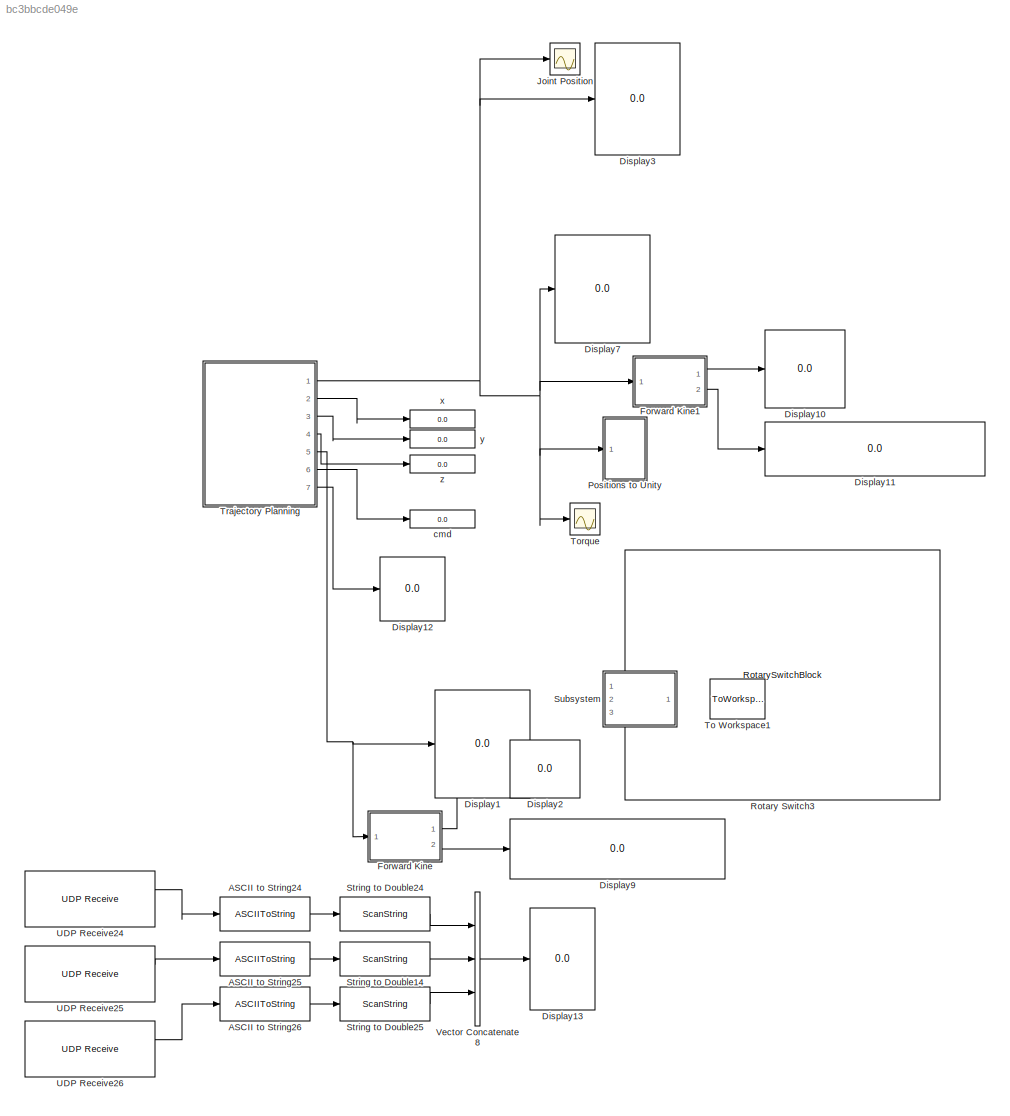
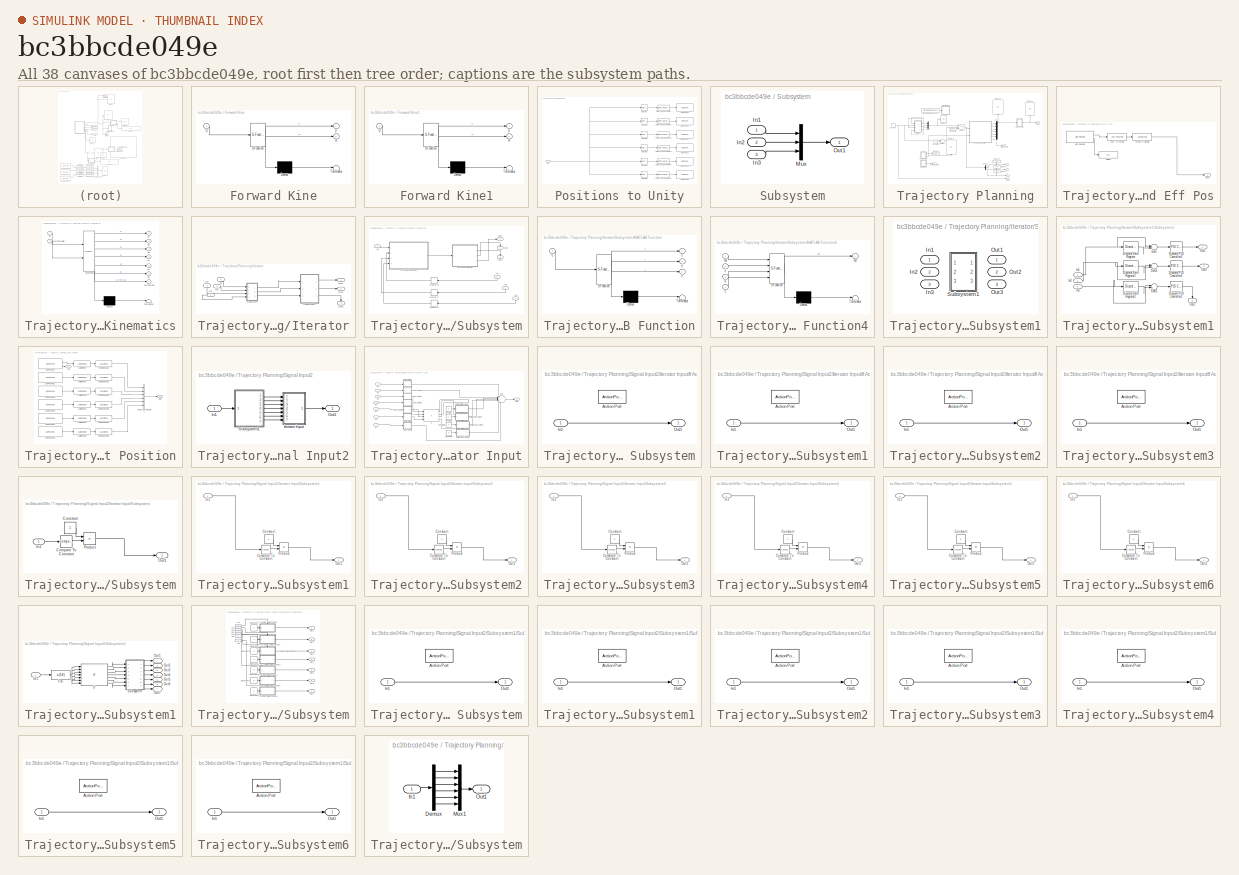
[diagram: thumbnail index - all 38 canvases of the model, root first then tree order]
MODEL slx_bc3bbcde049e
KIND model
CONFIG AbsTol = auto
CONFIG EnableMultiTasking = off
CONFIG FixedStep = 0.001
CONFIG MaxStep = auto
CONFIG MinStep = auto
CONFIG RelTol = 1e-3
CONFIG SampleTimeConstraint = Unconstrained
CONFIG Solver = ode5
CONFIG SolverName = ode5
CONFIG StartTime = 0.0
CONFIG StopTime = inf
BLOCK [ASCIIToString] ASCII to String24
BLOCK [ASCIIToString] ASCII to String25
BLOCK [ASCIIToString] ASCII to String26
BLOCK [Display] Display1
  Decimation = 1
  Ports = [1]
BLOCK [Display] Display10
  Decimation = 1
  Ports = [1]
BLOCK [Display] Display11
  Decimation = 1
  Ports = [1]
BLOCK [Display] Display12
  Decimation = 1
  Ports = [1]
BLOCK [Display] Display13
  Decimation = 1
  Ports = [1]
BLOCK [Display] Display2
  Decimation = 1
  Ports = [1]
BLOCK [Display] Display3
  Decimation = 1
  Ports = [1]
BLOCK [Display] Display7
  Decimation = 1
  Ports = [1]
BLOCK [Display] Display9
  Decimation = 1
  Ports = [1]
BLOCK [SubSystem] Forward Kine
  ErrorFcn = Stateflow.Translate.translate
  PermitHierarchicalResolution = ExplicitOnly
  Ports = [1, 2]
  RequestExecContextInheritance = off
  SFBlockType = MATLAB Function
  TreatAsAtomicUnit = on
BLOCK [Demux] Forward Kine/ Demux 
  Outputs = 1
  Ports = [1, 1]
BLOCK [S-Function] Forward Kine/ SFunction 
  EnableBusSupport = on
  FunctionName = sf_sfun
  PortCounts = [1 3]
  Ports = [1, 3]
  SFcnIsStateOwnerBlock = off
  SFunctionDeploymentMode = off
  Tag = Stateflow S-Function 2
BLOCK [Terminator] Forward Kine/ Terminator 
BLOCK [Inport] Forward Kine/Q
  IconDisplay = Port number
BLOCK [Outport] Forward Kine/R
  IconDisplay = Port number
  Port = 2
BLOCK [Outport] Forward Kine/p
  IconDisplay = Port number
BLOCK [SubSystem] Forward Kine1
  ErrorFcn = Stateflow.Translate.translate
  PermitHierarchicalResolution = ExplicitOnly
  Ports = [1, 2]
  RequestExecContextInheritance = off
  SFBlockType = MATLAB Function
  TreatAsAtomicUnit = on
BLOCK [Demux] Forward Kine1/ Demux 
  Outputs = 1
  Ports = [1, 1]
BLOCK [S-Function] Forward Kine1/ SFunction 
  EnableBusSupport = on
  FunctionName = sf_sfun
  PortCounts = [1 3]
  Ports = [1, 3]
  SFcnIsStateOwnerBlock = off
  SFunctionDeploymentMode = off
  Tag = Stateflow S-Function 1
BLOCK [Terminator] Forward Kine1/ Terminator 
BLOCK [Inport] Forward Kine1/Q
  IconDisplay = Port number
BLOCK [Outport] Forward Kine1/R
  IconDisplay = Port number
  Port = 2
BLOCK [Outport] Forward Kine1/p
  IconDisplay = Port number
BLOCK [Scope] Joint Position
  Floating = off
  NumInputPorts = 1
  Ports = [1]
  ScopeSpecificationString = Simulink.scopes.TimeScopeBlockCfg('CurrentConfiguration', extmgr.ConfigurationSet(extmgr.Configuration('Core','General UI',true),extmgr.Configuration('Core','Source UI',true),extmgr.Configuration('Sources','WiredSimulink',true,'DataLoggingVariableName','ScopeData15'),extmgr.Configuration('Visuals','Time Domain',true,'SerializedDisplays',{struct('MinYLimReal','-0.31005','MaxYLimReal','3.36967','YLa...<+1518ch>
BLOCK [SubSystem] Positions to Unity
  Ports = [1]
  RequestExecContextInheritance = off
BLOCK [DataTypeConversion] Positions to Unity/Data Type Conversion
  ConvertRealWorld = Stored Integer (SI)
  OutDataTypeStr = double
  RndMeth = Floor
  SaturateOnIntegerOverflow = off
BLOCK [DataTypeConversion] Positions to Unity/Data Type Conversion1
  ConvertRealWorld = Stored Integer (SI)
  OutDataTypeStr = double
  RndMeth = Floor
  SaturateOnIntegerOverflow = off
BLOCK [DataTypeConversion] Positions to Unity/Data Type Conversion2
  ConvertRealWorld = Stored Integer (SI)
  OutDataTypeStr = double
  RndMeth = Floor
  SaturateOnIntegerOverflow = off
BLOCK [DataTypeConversion] Positions to Unity/Data Type Conversion3
  ConvertRealWorld = Stored Integer (SI)
  OutDataTypeStr = double
  RndMeth = Floor
  SaturateOnIntegerOverflow = off
BLOCK [DataTypeConversion] Positions to Unity/Data Type Conversion4
  ConvertRealWorld = Stored Integer (SI)
  OutDataTypeStr = double
  RndMeth = Floor
  SaturateOnIntegerOverflow = off
BLOCK [DataTypeConversion] Positions to Unity/Data Type Conversion5
  ConvertRealWorld = Stored Integer (SI)
  OutDataTypeStr = double
  RndMeth = Floor
  SaturateOnIntegerOverflow = off
BLOCK [Inport] Positions to Unity/In1
  IconDisplay = Port number
BLOCK [Selector] Positions to Unity/Selector
  IndexOptions = Index vector (dialog)
  Indices = [1]
  InputPortWidth = 6
  OutputSizes = 1
  Ports = [1, 1]
BLOCK [Selector] Positions to Unity/Selector1
  IndexOptions = Index vector (dialog)
  Indices = [2]
  InputPortWidth = 6
  OutputSizes = 1
  Ports = [1, 1]
BLOCK [Selector] Positions to Unity/Selector2
  IndexOptions = Index vector (dialog)
  Indices = [3]
  InputPortWidth = 6
  OutputSizes = 1
  Ports = [1, 1]
BLOCK [Selector] Positions to Unity/Selector3
  IndexOptions = Index vector (dialog)
  Indices = [4]
  InputPortWidth = 6
  OutputSizes = 1
  Ports = [1, 1]
BLOCK [Selector] Positions to Unity/Selector4
  IndexOptions = Index vector (dialog)
  Indices = [5]
  InputPortWidth = 6
  OutputSizes = 1
  Ports = [1, 1]
BLOCK [Selector] Positions to Unity/Selector5
  IndexOptions = Index vector (dialog)
  Indices = [6]
  InputPortWidth = 6
  OutputSizes = 1
  Ports = [1, 1]
BLOCK [Reference] Positions to Unity/UDP Send1  REF=dspnetwork/UDP Send
  Ports = [1]
  SourceBlock = dspnetwork/UDP Send
  SourceProductBaseCode = SL
  SourceType = UDP Send
BLOCK [Reference] Positions to Unity/UDP Send2  REF=dspnetwork/UDP Send
  Ports = [1]
  SourceBlock = dspnetwork/UDP Send
  SourceProductBaseCode = SL
  SourceType = UDP Send
BLOCK [Reference] Positions to Unity/UDP Send3  REF=dspnetwork/UDP Send
  Ports = [1]
  SourceBlock = dspnetwork/UDP Send
  SourceProductBaseCode = SL
  SourceType = UDP Send
BLOCK [Reference] Positions to Unity/UDP Send4  REF=dspnetwork/UDP Send
  Ports = [1]
  SourceBlock = dspnetwork/UDP Send
  SourceProductBaseCode = SL
  SourceType = UDP Send
BLOCK [Reference] Positions to Unity/UDP Send5  REF=dspnetwork/UDP Send
  Ports = [1]
  SourceBlock = dspnetwork/UDP Send
  SourceProductBaseCode = SL
  SourceType = UDP Send
BLOCK [Reference] Positions to Unity/UDP Send6  REF=dspnetwork/UDP Send
  Ports = [1]
  SourceBlock = dspnetwork/UDP Send
  SourceProductBaseCode = SL
  SourceType = UDP Send
BLOCK [RotarySwitchBlock] Rotary Switch3
BLOCK [ScanString] String to Double14
  Format = "%lf"
  Ports = [1, 1]
BLOCK [ScanString] String to Double24
  Format = "%lf"
  Ports = [1, 1]
BLOCK [ScanString] String to Double25
  Format = "%lf"
  Ports = [1, 1]
BLOCK [SubSystem] Subsystem
  Commented = on
  Ports = [3, 1]
  RequestExecContextInheritance = off
BLOCK [Inport] Subsystem/In1
  IconDisplay = Port number
BLOCK [Inport] Subsystem/In2
  IconDisplay = Port number
  Port = 2
BLOCK [Inport] Subsystem/In3
  IconDisplay = Port number
  Port = 3
BLOCK [Mux] Subsystem/Mux
  DisplayOption = bar
  Inputs = 3
  Ports = [3, 1]
BLOCK [Outport] Subsystem/Out1
  IconDisplay = Port number
BLOCK [ToWorkspace] To Workspace1
  Commented = on
  FixptAsFi = on
  MaxDataPoints = inf
  Ports = [1]
  SampleTime = -1
  Save2DSignal = 2-D array (concatenate along first dimension)
  VariableName = xyz
BLOCK [Scope] Torque
  Floating = off
  NumInputPorts = 1
  Ports = [1]
  ScopeSpecificationString = Simulink.scopes.TimeScopeBlockCfg('CurrentConfiguration', extmgr.ConfigurationSet(extmgr.Configuration('Core','General UI',true),extmgr.Configuration('Core','Source UI',true),extmgr.Configuration('Sources','WiredSimulink',true,'DataLoggingVariableName','ScopeData17'),extmgr.Configuration('Visuals','Time Domain',true,'SerializedDisplays',{struct('MinYLimReal','-7181240078235254.00000','MaxYLimReal'...<+1699ch>
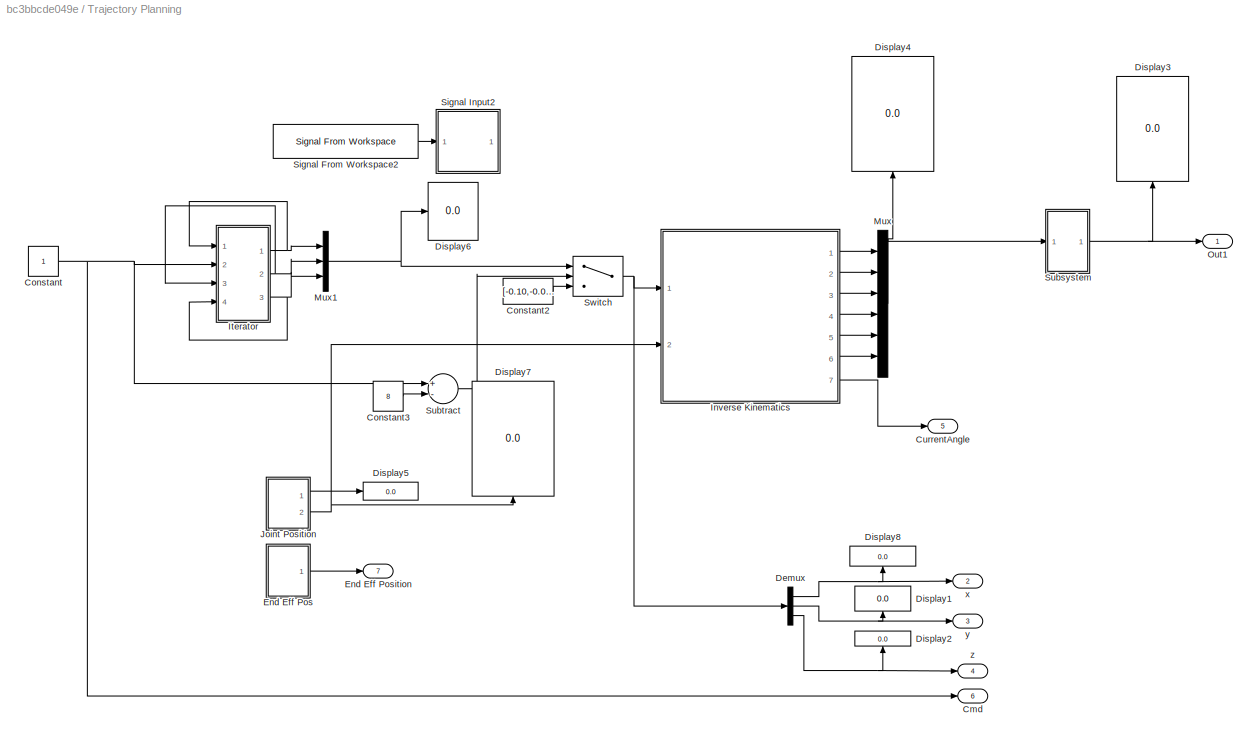
BLOCK [SubSystem] Trajectory Planning
  Ports = [0, 7]
  RequestExecContextInheritance = off
BLOCK [Outport] Trajectory Planning/Cmd
  IconDisplay = Port number
  Port = 6
BLOCK [Constant] Trajectory Planning/Constant
BLOCK [Constant] Trajectory Planning/Constant2
  Value = [-0.10,-0.01,0]
BLOCK [Constant] Trajectory Planning/Constant3
  Value = 8
BLOCK [Outport] Trajectory Planning/CurrentAngle 
  IconDisplay = Port number
  Port = 5
BLOCK [Demux] Trajectory Planning/Demux
  DisplayOption = bar
  Outputs = 3
  Ports = [1, 3]
BLOCK [Display] Trajectory Planning/Display1
  Decimation = 1
  Ports = [1]
BLOCK [Display] Trajectory Planning/Display2
  Decimation = 1
  Ports = [1]
BLOCK [Display] Trajectory Planning/Display3
  Decimation = 1
  Ports = [1]
BLOCK [Display] Trajectory Planning/Display4
  Decimation = 1
  Ports = [1]
BLOCK [Display] Trajectory Planning/Display5
  Decimation = 1
  Ports = [1]
BLOCK [Display] Trajectory Planning/Display6
  Decimation = 1
  Ports = [1]
BLOCK [Display] Trajectory Planning/Display7
  Decimation = 1
  Ports = [1]
BLOCK [Display] Trajectory Planning/Display8
  Decimation = 1
  Ports = [1]
BLOCK [SubSystem] Trajectory Planning/End Eff Pos
  Commented = on
  Ports = [0, 1]
  RequestExecContextInheritance = off
BLOCK [ASCIIToString] Trajectory Planning/End Eff Pos/ASCII to String
BLOCK [Display] Trajectory Planning/End Eff Pos/Display
  Decimation = 1
  Ports = [1]
BLOCK [Outport] Trajectory Planning/End Eff Pos/Out2
  IconDisplay = Port number
BLOCK [ScanString] Trajectory Planning/End Eff Pos/String to Double
  Format = "%lf"
  Ports = [1, 1]
BLOCK [Reference] Trajectory Planning/End Eff Pos/UDP Receive  REF=instrumentlib/UDP Receive
  Ports = [0, 2]
  SourceBlock = instrumentlib/UDP Receive
  SourceProductBaseCode = IC
  SourceType = UDP Receive
BLOCK [Outport] Trajectory Planning/End Eff Position
  IconDisplay = Port number
  Port = 7
BLOCK [SubSystem] Trajectory Planning/Inverse Kinematics
  ErrorFcn = Stateflow.Translate.translate
  PermitHierarchicalResolution = ExplicitOnly
  Ports = [2, 7]
  RequestExecContextInheritance = off
  SFBlockType = MATLAB Function
  TreatAsAtomicUnit = on
BLOCK [Demux] Trajectory Planning/Inverse Kinematics/ Demux 
  DisplayOption = bar
  Outputs = 1
  Ports = [1, 1]
BLOCK [S-Function] Trajectory Planning/Inverse Kinematics/ SFunction 
  EnableBusSupport = on
  FunctionName = sf_sfun
  PortCounts = [2 8]
  Ports = [2, 8]
  SFcnIsStateOwnerBlock = off
  SFunctionDeploymentMode = off
  Tag = Stateflow S-Function 7
BLOCK [Terminator] Trajectory Planning/Inverse Kinematics/ Terminator 
BLOCK [Outport] Trajectory Planning/Inverse Kinematics/currentAng
  IconDisplay = Port number
  Port = 7
BLOCK [Inport] Trajectory Planning/Inverse Kinematics/currentAngle
  IconDisplay = Port number
  Port = 2
BLOCK [Inport] Trajectory Planning/Inverse Kinematics/p
  IconDisplay = Port number
BLOCK [Outport] Trajectory Planning/Inverse Kinematics/q1
  IconDisplay = Port number
  VectorParamsAs1DForOutWhenUnconnected = off
BLOCK [Outport] Trajectory Planning/Inverse Kinematics/q2
  IconDisplay = Port number
  Port = 2
  VectorParamsAs1DForOutWhenUnconnected = off
BLOCK [Outport] Trajectory Planning/Inverse Kinematics/q3
  IconDisplay = Port number
  Port = 3
  VectorParamsAs1DForOutWhenUnconnected = off
BLOCK [Outport] Trajectory Planning/Inverse Kinematics/q4
  IconDisplay = Port number
  Port = 4
  VectorParamsAs1DForOutWhenUnconnected = off
BLOCK [Outport] Trajectory Planning/Inverse Kinematics/q5
  IconDisplay = Port number
  Port = 5
  VectorParamsAs1DForOutWhenUnconnected = off
BLOCK [Outport] Trajectory Planning/Inverse Kinematics/q6
  IconDisplay = Port number
  Port = 6
  VectorParamsAs1DForOutWhenUnconnected = off
BLOCK [SubSystem] Trajectory Planning/Iterator
  Ports = [4, 3]
  RequestExecContextInheritance = off
BLOCK [Inport] Trajectory Planning/Iterator/In1
  IconDisplay = Port number
BLOCK [Inport] Trajectory Planning/Iterator/In2
  IconDisplay = Port number
  Port = 2
BLOCK [Inport] Trajectory Planning/Iterator/In3
  IconDisplay = Port number
  Port = 3
BLOCK [Inport] Trajectory Planning/Iterator/In4
  IconDisplay = Port number
  Port = 4
BLOCK [Outport] Trajectory Planning/Iterator/Out1
  IconDisplay = Port number
BLOCK [Outport] Trajectory Planning/Iterator/Out2
  IconDisplay = Port number
  Port = 2
BLOCK [Outport] Trajectory Planning/Iterator/Out3
  IconDisplay = Port number
  Port = 3
BLOCK [SubSystem] Trajectory Planning/Iterator/Subsystem
  Ports = [4, 3]
  RequestExecContextInheritance = off
BLOCK [Inport] Trajectory Planning/Iterator/Subsystem/In1
  IconDisplay = Port number
BLOCK [Inport] Trajectory Planning/Iterator/Subsystem/In2
  IconDisplay = Port number
  Port = 2
BLOCK [Inport] Trajectory Planning/Iterator/Subsystem/In3
  IconDisplay = Port number
  Port = 3
BLOCK [Inport] Trajectory Planning/Iterator/Subsystem/In4
  IconDisplay = Port number
  Port = 4
BLOCK [SubSystem] Trajectory Planning/Iterator/Subsystem/MATLAB Function
  ErrorFcn = Stateflow.Translate.translate
  PermitHierarchicalResolution = ExplicitOnly
  Ports = [1, 3]
  RequestExecContextInheritance = off
  SFBlockType = MATLAB Function
  TreatAsAtomicUnit = on
BLOCK [Demux] Trajectory Planning/Iterator/Subsystem/MATLAB Function/ Demux 
  Outputs = 1
  Ports = [1, 1]
BLOCK [S-Function] Trajectory Planning/Iterator/Subsystem/MATLAB Function/ SFunction 
  EnableBusSupport = on
  FunctionName = sf_sfun
  PortCounts = [1 4]
  Ports = [1, 4]
  SFcnIsStateOwnerBlock = off
  SFunctionDeploymentMode = off
  Tag = Stateflow S-Function 3
BLOCK [Terminator] Trajectory Planning/Iterator/Subsystem/MATLAB Function/ Terminator 
BLOCK [Inport] Trajectory Planning/Iterator/Subsystem/MATLAB Function/u
  IconDisplay = Port number
BLOCK [Outport] Trajectory Planning/Iterator/Subsystem/MATLAB Function/x
  IconDisplay = Port number
BLOCK [Outport] Trajectory Planning/Iterator/Subsystem/MATLAB Function/y
  IconDisplay = Port number
  Port = 2
BLOCK [Outport] Trajectory Planning/Iterator/Subsystem/MATLAB Function/z
  IconDisplay = Port number
  Port = 3
BLOCK [SubSystem] Trajectory Planning/Iterator/Subsystem/MATLAB Function4
  ErrorFcn = Stateflow.Translate.translate
  PermitHierarchicalResolution = ExplicitOnly
  Ports = [4, 1]
  RequestExecContextInheritance = off
  SFBlockType = MATLAB Function
  TreatAsAtomicUnit = on
BLOCK [Demux] Trajectory Planning/Iterator/Subsystem/MATLAB Function4/ Demux 
  Outputs = 1
  Ports = [1, 1]
BLOCK [S-Function] Trajectory Planning/Iterator/Subsystem/MATLAB Function4/ SFunction 
  EnableBusSupport = on
  FunctionName = sf_sfun
  PortCounts = [4 2]
  Ports = [4, 2]
  SFcnIsStateOwnerBlock = off
  SFunctionDeploymentMode = off
  Tag = Stateflow S-Function 8
BLOCK [Terminator] Trajectory Planning/Iterator/Subsystem/MATLAB Function4/ Terminator 
BLOCK [Outport] Trajectory Planning/Iterator/Subsystem/MATLAB Function4/out
  IconDisplay = Port number
BLOCK [Inport] Trajectory Planning/Iterator/Subsystem/MATLAB Function4/val
  IconDisplay = Port number
BLOCK [Inport] Trajectory Planning/Iterator/Subsystem/MATLAB Function4/x
  IconDisplay = Port number
  Port = 2
BLOCK [Inport] Trajectory Planning/Iterator/Subsystem/MATLAB Function4/y
  IconDisplay = Port number
  Port = 3
BLOCK [Inport] Trajectory Planning/Iterator/Subsystem/MATLAB Function4/z
  IconDisplay = Port number
  Port = 4
BLOCK [Memory] Trajectory Planning/Iterator/Subsystem/Memory1
BLOCK [Memory] Trajectory Planning/Iterator/Subsystem/Memory2
BLOCK [Memory] Trajectory Planning/Iterator/Subsystem/Memory3
BLOCK [Outport] Trajectory Planning/Iterator/Subsystem/Out1
  IconDisplay = Port number
BLOCK [Outport] Trajectory Planning/Iterator/Subsystem/Out2
  IconDisplay = Port number
  Port = 2
BLOCK [Outport] Trajectory Planning/Iterator/Subsystem/Out3
  IconDisplay = Port number
  Port = 3
BLOCK [SubSystem] Trajectory Planning/Iterator/Subsystem1
  LabelModeActiveChoice = Variant1
  Ports = [3, 3]
  RequestExecContextInheritance = off
  Variant = on
  VariantControl = Variant1
  VariantControlMode = Label
BLOCK [Outport] Trajectory Planning/Iterator/Subsystem1/ Out1
  IconDisplay = Port number
BLOCK [Outport] Trajectory Planning/Iterator/Subsystem1/ Out2
  IconDisplay = Port number
  Port = 2
BLOCK [Outport] Trajectory Planning/Iterator/Subsystem1/ Out3
  IconDisplay = Port number
  Port = 3
BLOCK [Inport] Trajectory Planning/Iterator/Subsystem1/In1 
  IconDisplay = Port number
BLOCK [Inport] Trajectory Planning/Iterator/Subsystem1/In2 
  IconDisplay = Port number
  Port = 2
BLOCK [Inport] Trajectory Planning/Iterator/Subsystem1/In3 
  IconDisplay = Port number
  Port = 3
BLOCK [SubSystem] Trajectory Planning/Iterator/Subsystem1/Subsystem1
  Ports = [3, 3]
  RequestExecContextInheritance = off
  VariantControl = Variant1
BLOCK [Reference] Trajectory Planning/Iterator/Subsystem1/Subsystem1/Discrete PID Controller1  REF=simulink/Continuous/PID Controller
  Ports = [1, 1]
  SourceBlock = simulink/Continuous/PID Controller
  SourceProductBaseCode = SL
  SourceProductName = Simulink
  SourceType = PID 1dof
BLOCK [Reference] Trajectory Planning/Iterator/Subsystem1/Subsystem1/Discrete PID Controller3  REF=simulink/Continuous/PID Controller
  Ports = [1, 1]
  SourceBlock = simulink/Continuous/PID Controller
  SourceProductBaseCode = SL
  SourceProductName = Simulink
  SourceType = PID 1dof
BLOCK [Reference] Trajectory Planning/Iterator/Subsystem1/Subsystem1/Discrete PID Controller4  REF=simulink/Continuous/PID Controller
  Ports = [1, 1]
  SourceBlock = simulink/Continuous/PID Controller
  SourceProductBaseCode = SL
  SourceProductName = Simulink
  SourceType = PID 1dof
BLOCK [Reference] Trajectory Planning/Iterator/Subsystem1/Subsystem1/Discrete Shift Register  REF=powerlib_meascontrol/Additional Components/Discrete
Shift Register
  Ports = [1, 1]
  SourceBlock = powerlib_meascontrol/Additional Components/Discrete\nShift Register
  SourceProductBaseCode = PS
  SourceProductName = Simscape Electrical
  SourceType = Discrete Shift Register
BLOCK [Reference] Trajectory Planning/Iterator/Subsystem1/Subsystem1/Discrete Shift Register1  REF=powerlib_meascontrol/Additional Components/Discrete
Shift Register
  Ports = [1, 1]
  SourceBlock = powerlib_meascontrol/Additional Components/Discrete\nShift Register
  SourceProductBaseCode = PS
  SourceProductName = Simscape Electrical
  SourceType = Discrete Shift Register
BLOCK [Reference] Trajectory Planning/Iterator/Subsystem1/Subsystem1/Discrete Shift Register2  REF=powerlib_meascontrol/Additional Components/Discrete
Shift Register
  Ports = [1, 1]
  SourceBlock = powerlib_meascontrol/Additional Components/Discrete\nShift Register
  SourceProductBaseCode = PS
  SourceProductName = Simscape Electrical
  SourceType = Discrete Shift Register
BLOCK [Inport] Trajectory Planning/Iterator/Subsystem1/Subsystem1/In1
  IconDisplay = Port number
BLOCK [Inport] Trajectory Planning/Iterator/Subsystem1/Subsystem1/In2
  IconDisplay = Port number
  Port = 2
BLOCK [Inport] Trajectory Planning/Iterator/Subsystem1/Subsystem1/In3
  IconDisplay = Port number
  Port = 3
BLOCK [Outport] Trajectory Planning/Iterator/Subsystem1/Subsystem1/Out1
  IconDisplay = Port number
BLOCK [Outport] Trajectory Planning/Iterator/Subsystem1/Subsystem1/Out2
  IconDisplay = Port number
  Port = 2
BLOCK [Outport] Trajectory Planning/Iterator/Subsystem1/Subsystem1/Out3
  IconDisplay = Port number
  Port = 3
BLOCK [Sum] Trajectory Planning/Iterator/Subsystem1/Subsystem1/Sum
  IconShape = round
  InputSameDT = off
  Inputs = |++
  OutDataTypeStr = Inherit: Inherit via internal rule
  Ports = [2, 1]
  SaturateOnIntegerOverflow = off
BLOCK [Sum] Trajectory Planning/Iterator/Subsystem1/Subsystem1/Sum1
  IconShape = round
  InputSameDT = off
  Inputs = |++
  OutDataTypeStr = Inherit: Inherit via internal rule
  Ports = [2, 1]
  SaturateOnIntegerOverflow = off
BLOCK [Sum] Trajectory Planning/Iterator/Subsystem1/Subsystem1/Sum2
  IconShape = round
  InputSameDT = off
  Inputs = |++
  OutDataTypeStr = Inherit: Inherit via internal rule
  Ports = [2, 1]
  SaturateOnIntegerOverflow = off
BLOCK [SubSystem] Trajectory Planning/Joint Position
  Ports = [0, 2]
  RequestExecContextInheritance = off
BLOCK [ASCIIToString] Trajectory Planning/Joint Position/ASCII to String
BLOCK [ASCIIToString] Trajectory Planning/Joint Position/ASCII to String1
BLOCK [ASCIIToString] Trajectory Planning/Joint Position/ASCII to String2
BLOCK [ASCIIToString] Trajectory Planning/Joint Position/ASCII to String3
BLOCK [ASCIIToString] Trajectory Planning/Joint Position/ASCII to String4
BLOCK [ASCIIToString] Trajectory Planning/Joint Position/ASCII to String5
BLOCK [Outport] Trajectory Planning/Joint Position/Out1
  IconDisplay = Port number
BLOCK [Outport] Trajectory Planning/Joint Position/Out2
  IconDisplay = Port number
  Port = 2
BLOCK [ScanString] Trajectory Planning/Joint Position/String to Double
  Format = "%lf"
  Ports = [1, 1]
BLOCK [ScanString] Trajectory Planning/Joint Position/String to Double1
  Format = "%lf"
  Ports = [1, 1]
BLOCK [ScanString] Trajectory Planning/Joint Position/String to Double2
  Format = "%lf"
  Ports = [1, 1]
BLOCK [ScanString] Trajectory Planning/Joint Position/String to Double3
  Format = "%lf"
  Ports = [1, 1]
BLOCK [ScanString] Trajectory Planning/Joint Position/String to Double4
  Format = "%lf"
  Ports = [1, 1]
BLOCK [ScanString] Trajectory Planning/Joint Position/String to Double5
  Format = "%lf"
  Ports = [1, 1]
BLOCK [Reference] Trajectory Planning/Joint Position/UDP Receive  REF=instrumentlib/UDP Receive
  Ports = [0, 2]
  SourceBlock = instrumentlib/UDP Receive
  SourceProductBaseCode = IC
  SourceType = UDP Receive
BLOCK [Reference] Trajectory Planning/Joint Position/UDP Receive1  REF=instrumentlib/UDP Receive
  Ports = [0, 1]
  SourceBlock = instrumentlib/UDP Receive
  SourceProductBaseCode = IC
  SourceType = UDP Receive
BLOCK [Reference] Trajectory Planning/Joint Position/UDP Receive2  REF=instrumentlib/UDP Receive
  Ports = [0, 1]
  SourceBlock = instrumentlib/UDP Receive
  SourceProductBaseCode = IC
  SourceType = UDP Receive
BLOCK [Reference] Trajectory Planning/Joint Position/UDP Receive3  REF=instrumentlib/UDP Receive
  Ports = [0, 1]
  SourceBlock = instrumentlib/UDP Receive
  SourceProductBaseCode = IC
  SourceType = UDP Receive
BLOCK [Reference] Trajectory Planning/Joint Position/UDP Receive4  REF=instrumentlib/UDP Receive
  Ports = [0, 1]
  SourceBlock = instrumentlib/UDP Receive
  SourceProductBaseCode = IC
  SourceType = UDP Receive
BLOCK [Reference] Trajectory Planning/Joint Position/UDP Receive5  REF=instrumentlib/UDP Receive
  Ports = [0, 1]
  SourceBlock = instrumentlib/UDP Receive
  SourceProductBaseCode = IC
  SourceType = UDP Receive
BLOCK [Concatenate] Trajectory Planning/Joint Position/Vector Concatenate1
  NumInputs = 6
  Ports = [6, 1]
BLOCK [Mux] Trajectory Planning/Mux
  DisplayOption = signals
  Inputs = 6
  Ports = [6, 1]
BLOCK [Mux] Trajectory Planning/Mux1
  DisplayOption = bar
  Inputs = 3
  Ports = [3, 1]
BLOCK [Outport] Trajectory Planning/Out1
  IconDisplay = Port number
BLOCK [Reference] Trajectory Planning/Signal From Workspace2  REF=dspsrcs4/Signal From
Workspace
  Commented = on
  Ports = [0, 1]
  SourceBlock = dspsrcs4/Signal From\nWorkspace
  SourceProductBaseCode = DS
  SourceType = Signal From Workspace
BLOCK [SubSystem] Trajectory Planning/Signal Input2
  Commented = on
  Ports = [1, 1]
  RequestExecContextInheritance = off
BLOCK [Inport] Trajectory Planning/Signal Input2/In1
  IconDisplay = Port number
BLOCK [SubSystem] Trajectory Planning/Signal Input2/Iterator Input
  Ports = [7, 1]
  RequestExecContextInheritance = off
BLOCK [Constant] Trajectory Planning/Signal Input2/Iterator Input/Constant
  Value = 5
BLOCK [Constant] Trajectory Planning/Signal Input2/Iterator Input/Constant1
  Value = 2
BLOCK [Constant] Trajectory Planning/Signal Input2/Iterator Input/Constant2
  Value = 3
BLOCK [Constant] Trajectory Planning/Signal Input2/Iterator Input/Constant3
  Value = 6
BLOCK [If] Trajectory Planning/Signal Input2/Iterator Input/If
  ElseIfExpressions = u2==6,u3==2,u4==5
  IfExpression = u1 == 3
  NumInputs = 4
  Ports = [4, 4]
  ShowElse = off
BLOCK [SubSystem] Trajectory Planning/Signal Input2/Iterator Input/If Action Subsystem
  Ports = [1, 1, 0, 0, 0, 0, 0, 1]
  RequestExecContextInheritance = off
  TreatAsAtomicUnit = on
BLOCK [ActionPort] Trajectory Planning/Signal Input2/Iterator Input/If Action Subsystem/Action Port
  InitializeStates = reset
BLOCK [Inport] Trajectory Planning/Signal Input2/Iterator Input/If Action Subsystem/In1
  IconDisplay = Port number
BLOCK [Outport] Trajectory Planning/Signal Input2/Iterator Input/If Action Subsystem/Out1
  IconDisplay = Port number
  InitialOutput = [0]
  OutputWhenDisabled = reset
BLOCK [SubSystem] Trajectory Planning/Signal Input2/Iterator Input/If Action Subsystem1
  Ports = [1, 1, 0, 0, 0, 0, 0, 1]
  RequestExecContextInheritance = off
  TreatAsAtomicUnit = on
BLOCK [ActionPort] Trajectory Planning/Signal Input2/Iterator Input/If Action Subsystem1/Action Port
  InitializeStates = reset
BLOCK [Inport] Trajectory Planning/Signal Input2/Iterator Input/If Action Subsystem1/In1
  IconDisplay = Port number
BLOCK [Outport] Trajectory Planning/Signal Input2/Iterator Input/If Action Subsystem1/Out1
  IconDisplay = Port number
  InitialOutput = [0]
  OutputWhenDisabled = reset
BLOCK [SubSystem] Trajectory Planning/Signal Input2/Iterator Input/If Action Subsystem2
  Ports = [1, 1, 0, 0, 0, 0, 0, 1]
  RequestExecContextInheritance = off
  TreatAsAtomicUnit = on
BLOCK [ActionPort] Trajectory Planning/Signal Input2/Iterator Input/If Action Subsystem2/Action Port
  InitializeStates = reset
BLOCK [Inport] Trajectory Planning/Signal Input2/Iterator Input/If Action Subsystem2/In1
  IconDisplay = Port number
BLOCK [Outport] Trajectory Planning/Signal Input2/Iterator Input/If Action Subsystem2/Out1
  IconDisplay = Port number
  InitialOutput = [0]
  OutputWhenDisabled = reset
BLOCK [SubSystem] Trajectory Planning/Signal Input2/Iterator Input/If Action Subsystem3
  Ports = [1, 1, 0, 0, 0, 0, 0, 1]
  RequestExecContextInheritance = off
  TreatAsAtomicUnit = on
BLOCK [ActionPort] Trajectory Planning/Signal Input2/Iterator Input/If Action Subsystem3/Action Port
  InitializeStates = reset
BLOCK [Inport] Trajectory Planning/Signal Input2/Iterator Input/If Action Subsystem3/In1
  IconDisplay = Port number
BLOCK [Outport] Trajectory Planning/Signal Input2/Iterator Input/If Action Subsystem3/Out1
  IconDisplay = Port number
  InitialOutput = [0]
  OutputWhenDisabled = reset
BLOCK [Inport] Trajectory Planning/Signal Input2/Iterator Input/In1
  IconDisplay = Port number
BLOCK [Inport] Trajectory Planning/Signal Input2/Iterator Input/In2
  IconDisplay = Port number
  Port = 2
BLOCK [Inport] Trajectory Planning/Signal Input2/Iterator Input/In3
  IconDisplay = Port number
  Port = 3
BLOCK [Inport] Trajectory Planning/Signal Input2/Iterator Input/In4
  IconDisplay = Port number
  Port = 4
BLOCK [Inport] Trajectory Planning/Signal Input2/Iterator Input/In5
  IconDisplay = Port number
  Port = 5
BLOCK [Inport] Trajectory Planning/Signal Input2/Iterator Input/In6
  IconDisplay = Port number
  Port = 6
BLOCK [Inport] Trajectory Planning/Signal Input2/Iterator Input/In7
  IconDisplay = Port number
  Port = 7
BLOCK [Outport] Trajectory Planning/Signal Input2/Iterator Input/Out1
  IconDisplay = Port number
BLOCK [SubSystem] Trajectory Planning/Signal Input2/Iterator Input/Subsystem
  Ports = [1, 1]
  RequestExecContextInheritance = off
BLOCK [Reference] Trajectory Planning/Signal Input2/Iterator Input/Subsystem/Compare To Constant  REF=simulink/Logic and Bit
Operations/Compare
To Constant
  Ports = [1, 1]
  SourceBlock = simulink/Logic and Bit\nOperations/Compare\nTo Constant
  SourceProductBaseCode = SL
  SourceType = Compare To Constant
BLOCK [Constant] Trajectory Planning/Signal Input2/Iterator Input/Subsystem/Constant
BLOCK [Inport] Trajectory Planning/Signal Input2/Iterator Input/Subsystem/In1
  IconDisplay = Port number
BLOCK [Outport] Trajectory Planning/Signal Input2/Iterator Input/Subsystem/Out1
  IconDisplay = Port number
BLOCK [Product] Trajectory Planning/Signal Input2/Iterator Input/Subsystem/Product
  InputSameDT = off
  OutDataTypeStr = Inherit: Inherit via internal rule
  Ports = [2, 1]
  RndMeth = Floor
  SaturateOnIntegerOverflow = off
BLOCK [SubSystem] Trajectory Planning/Signal Input2/Iterator Input/Subsystem1
  Ports = [1, 1]
  RequestExecContextInheritance = off
BLOCK [Reference] Trajectory Planning/Signal Input2/Iterator Input/Subsystem1/Compare To Constant  REF=simulink/Logic and Bit
Operations/Compare
To Constant
  Ports = [1, 1]
  SourceBlock = simulink/Logic and Bit\nOperations/Compare\nTo Constant
  SourceProductBaseCode = SL
  SourceType = Compare To Constant
BLOCK [Constant] Trajectory Planning/Signal Input2/Iterator Input/Subsystem1/Constant
  Value = 4
BLOCK [Inport] Trajectory Planning/Signal Input2/Iterator Input/Subsystem1/In1
  IconDisplay = Port number
BLOCK [Outport] Trajectory Planning/Signal Input2/Iterator Input/Subsystem1/Out1
  IconDisplay = Port number
BLOCK [Product] Trajectory Planning/Signal Input2/Iterator Input/Subsystem1/Product
  InputSameDT = off
  OutDataTypeStr = Inherit: Inherit via internal rule
  Ports = [2, 1]
  RndMeth = Floor
  SaturateOnIntegerOverflow = off
BLOCK [SubSystem] Trajectory Planning/Signal Input2/Iterator Input/Subsystem2
  Ports = [1, 1]
  RequestExecContextInheritance = off
BLOCK [Reference] Trajectory Planning/Signal Input2/Iterator Input/Subsystem2/Compare To Constant  REF=simulink/Logic and Bit
Operations/Compare
To Constant
  Ports = [1, 1]
  SourceBlock = simulink/Logic and Bit\nOperations/Compare\nTo Constant
  SourceProductBaseCode = SL
  SourceType = Compare To Constant
BLOCK [Constant] Trajectory Planning/Signal Input2/Iterator Input/Subsystem2/Constant
  Value = 3
BLOCK [Inport] Trajectory Planning/Signal Input2/Iterator Input/Subsystem2/In1
  IconDisplay = Port number
BLOCK [Outport] Trajectory Planning/Signal Input2/Iterator Input/Subsystem2/Out1
  IconDisplay = Port number
BLOCK [Product] Trajectory Planning/Signal Input2/Iterator Input/Subsystem2/Product
  InputSameDT = off
  OutDataTypeStr = Inherit: Inherit via internal rule
  Ports = [2, 1]
  RndMeth = Floor
  SaturateOnIntegerOverflow = off
BLOCK [SubSystem] Trajectory Planning/Signal Input2/Iterator Input/Subsystem3
  Ports = [1, 1]
  RequestExecContextInheritance = off
BLOCK [Reference] Trajectory Planning/Signal Input2/Iterator Input/Subsystem3/Compare To Constant  REF=simulink/Logic and Bit
Operations/Compare
To Constant
  Ports = [1, 1]
  SourceBlock = simulink/Logic and Bit\nOperations/Compare\nTo Constant
  SourceProductBaseCode = SL
  SourceType = Compare To Constant
BLOCK [Constant] Trajectory Planning/Signal Input2/Iterator Input/Subsystem3/Constant
  Value = 6
BLOCK [Inport] Trajectory Planning/Signal Input2/Iterator Input/Subsystem3/In1
  IconDisplay = Port number
BLOCK [Outport] Trajectory Planning/Signal Input2/Iterator Input/Subsystem3/Out1
  IconDisplay = Port number
BLOCK [Product] Trajectory Planning/Signal Input2/Iterator Input/Subsystem3/Product
  InputSameDT = off
  OutDataTypeStr = Inherit: Inherit via internal rule
  Ports = [2, 1]
  RndMeth = Floor
  SaturateOnIntegerOverflow = off
BLOCK [SubSystem] Trajectory Planning/Signal Input2/Iterator Input/Subsystem4
  Ports = [1, 1]
  RequestExecContextInheritance = off
BLOCK [Reference] Trajectory Planning/Signal Input2/Iterator Input/Subsystem4/Compare To Constant  REF=simulink/Logic and Bit
Operations/Compare
To Constant
  Ports = [1, 1]
  SourceBlock = simulink/Logic and Bit\nOperations/Compare\nTo Constant
  SourceProductBaseCode = SL
  SourceType = Compare To Constant
BLOCK [Constant] Trajectory Planning/Signal Input2/Iterator Input/Subsystem4/Constant
  Value = 2
BLOCK [Inport] Trajectory Planning/Signal Input2/Iterator Input/Subsystem4/In1
  IconDisplay = Port number
BLOCK [Outport] Trajectory Planning/Signal Input2/Iterator Input/Subsystem4/Out1
  IconDisplay = Port number
BLOCK [Product] Trajectory Planning/Signal Input2/Iterator Input/Subsystem4/Product
  InputSameDT = off
  OutDataTypeStr = Inherit: Inherit via internal rule
  Ports = [2, 1]
  RndMeth = Floor
  SaturateOnIntegerOverflow = off
BLOCK [SubSystem] Trajectory Planning/Signal Input2/Iterator Input/Subsystem5
  Ports = [1, 1]
  RequestExecContextInheritance = off
BLOCK [Reference] Trajectory Planning/Signal Input2/Iterator Input/Subsystem5/Compare To Constant  REF=simulink/Logic and Bit
Operations/Compare
To Constant
  Ports = [1, 1]
  SourceBlock = simulink/Logic and Bit\nOperations/Compare\nTo Constant
  SourceProductBaseCode = SL
  SourceType = Compare To Constant
BLOCK [Constant] Trajectory Planning/Signal Input2/Iterator Input/Subsystem5/Constant
  Value = 5
BLOCK [Inport] Trajectory Planning/Signal Input2/Iterator Input/Subsystem5/In1
  IconDisplay = Port number
BLOCK [Outport] Trajectory Planning/Signal Input2/Iterator Input/Subsystem5/Out1
  IconDisplay = Port number
BLOCK [Product] Trajectory Planning/Signal Input2/Iterator Input/Subsystem5/Product
  InputSameDT = off
  OutDataTypeStr = Inherit: Inherit via internal rule
  Ports = [2, 1]
  RndMeth = Floor
  SaturateOnIntegerOverflow = off
BLOCK [SubSystem] Trajectory Planning/Signal Input2/Iterator Input/Subsystem6
  Ports = [1, 1]
  RequestExecContextInheritance = off
BLOCK [Reference] Trajectory Planning/Signal Input2/Iterator Input/Subsystem6/Compare To Constant  REF=simulink/Logic and Bit
Operations/Compare
To Constant
  Ports = [1, 1]
  SourceBlock = simulink/Logic and Bit\nOperations/Compare\nTo Constant
  SourceProductBaseCode = SL
  SourceType = Compare To Constant
BLOCK [Constant] Trajectory Planning/Signal Input2/Iterator Input/Subsystem6/Constant
  Value = 0
BLOCK [Inport] Trajectory Planning/Signal Input2/Iterator Input/Subsystem6/In1
  IconDisplay = Port number
BLOCK [Outport] Trajectory Planning/Signal Input2/Iterator Input/Subsystem6/Out1
  IconDisplay = Port number
BLOCK [Product] Trajectory Planning/Signal Input2/Iterator Input/Subsystem6/Product
  InputSameDT = off
  OutDataTypeStr = Inherit: Inherit via internal rule
  Ports = [2, 1]
  RndMeth = Floor
  SaturateOnIntegerOverflow = off
BLOCK [Sum] Trajectory Planning/Signal Input2/Iterator Input/Sum
  IconShape = round
  InputSameDT = off
  Inputs = |+++++++
  OutDataTypeStr = Inherit: Inherit via internal rule
  Ports = [7, 1]
  SaturateOnIntegerOverflow = off
BLOCK [Outport] Trajectory Planning/Signal Input2/Out1
  IconDisplay = Port number
BLOCK [SubSystem] Trajectory Planning/Signal Input2/Subsystem1
  Ports = [1, 7]
  RequestExecContextInheritance = off
BLOCK [Fcn] Trajectory Planning/Signal Input2/Subsystem1/Fcn
  Expr = u(58)
BLOCK [If] Trajectory Planning/Signal Input2/Subsystem1/If
  ElseIfExpressions = u2==114,u3==105,u4==111,u4==117,u5==100,u7==102
  IfExpression = u1 == 108
  NumInputs = 7
  Ports = [7, 7]
  ShowElse = off
BLOCK [Inport] Trajectory Planning/Signal Input2/Subsystem1/In1
  IconDisplay = Port number
BLOCK [Outport] Trajectory Planning/Signal Input2/Subsystem1/Out1
  IconDisplay = Port number
BLOCK [Outport] Trajectory Planning/Signal Input2/Subsystem1/Out2
  IconDisplay = Port number
  Port = 2
BLOCK [Outport] Trajectory Planning/Signal Input2/Subsystem1/Out3
  IconDisplay = Port number
  Port = 3
BLOCK [Outport] Trajectory Planning/Signal Input2/Subsystem1/Out4
  IconDisplay = Port number
  Port = 4
BLOCK [Outport] Trajectory Planning/Signal Input2/Subsystem1/Out5
  IconDisplay = Port number
  Port = 5
BLOCK [Outport] Trajectory Planning/Signal Input2/Subsystem1/Out6
  IconDisplay = Port number
  Port = 6
BLOCK [Outport] Trajectory Planning/Signal Input2/Subsystem1/Out7
  IconDisplay = Port number
  Port = 7
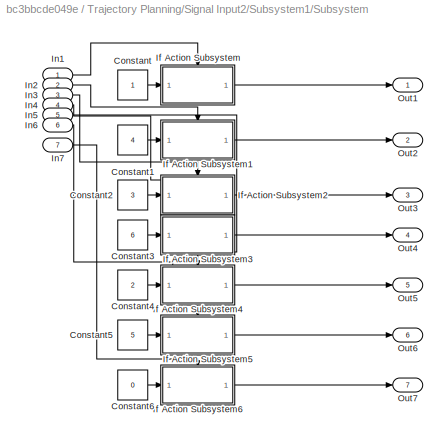
BLOCK [SubSystem] Trajectory Planning/Signal Input2/Subsystem1/Subsystem
  Ports = [7, 7]
  RequestExecContextInheritance = off
BLOCK [Constant] Trajectory Planning/Signal Input2/Subsystem1/Subsystem/Constant
BLOCK [Constant] Trajectory Planning/Signal Input2/Subsystem1/Subsystem/Constant1
  Value = 4
BLOCK [Constant] Trajectory Planning/Signal Input2/Subsystem1/Subsystem/Constant2
  Value = 3
BLOCK [Constant] Trajectory Planning/Signal Input2/Subsystem1/Subsystem/Constant3
  Value = 6
BLOCK [Constant] Trajectory Planning/Signal Input2/Subsystem1/Subsystem/Constant4
  Value = 2
BLOCK [Constant] Trajectory Planning/Signal Input2/Subsystem1/Subsystem/Constant5
  Value = 5
BLOCK [Constant] Trajectory Planning/Signal Input2/Subsystem1/Subsystem/Constant6
  Value = 0
BLOCK [SubSystem] Trajectory Planning/Signal Input2/Subsystem1/Subsystem/If Action Subsystem
  Ports = [1, 1, 0, 0, 0, 0, 0, 1]
  RequestExecContextInheritance = off
  TreatAsAtomicUnit = on
BLOCK [ActionPort] Trajectory Planning/Signal Input2/Subsystem1/Subsystem/If Action Subsystem/Action Port
  InitializeStates = reset
BLOCK [Inport] Trajectory Planning/Signal Input2/Subsystem1/Subsystem/If Action Subsystem/In1
  IconDisplay = Port number
BLOCK [Outport] Trajectory Planning/Signal Input2/Subsystem1/Subsystem/If Action Subsystem/Out1
  IconDisplay = Port number
  InitialOutput = [0]
  OutputWhenDisabled = reset
BLOCK [SubSystem] Trajectory Planning/Signal Input2/Subsystem1/Subsystem/If Action Subsystem1
  Ports = [1, 1, 0, 0, 0, 0, 0, 1]
  RequestExecContextInheritance = off
  TreatAsAtomicUnit = on
BLOCK [ActionPort] Trajectory Planning/Signal Input2/Subsystem1/Subsystem/If Action Subsystem1/Action Port
  InitializeStates = reset
BLOCK [Inport] Trajectory Planning/Signal Input2/Subsystem1/Subsystem/If Action Subsystem1/In1
  IconDisplay = Port number
BLOCK [Outport] Trajectory Planning/Signal Input2/Subsystem1/Subsystem/If Action Subsystem1/Out1
  IconDisplay = Port number
  InitialOutput = [0]
  OutputWhenDisabled = reset
BLOCK [SubSystem] Trajectory Planning/Signal Input2/Subsystem1/Subsystem/If Action Subsystem2
  Ports = [1, 1, 0, 0, 0, 0, 0, 1]
  RequestExecContextInheritance = off
  TreatAsAtomicUnit = on
BLOCK [ActionPort] Trajectory Planning/Signal Input2/Subsystem1/Subsystem/If Action Subsystem2/Action Port
  InitializeStates = reset
BLOCK [Inport] Trajectory Planning/Signal Input2/Subsystem1/Subsystem/If Action Subsystem2/In1
  IconDisplay = Port number
BLOCK [Outport] Trajectory Planning/Signal Input2/Subsystem1/Subsystem/If Action Subsystem2/Out1
  IconDisplay = Port number
  InitialOutput = [0]
  OutputWhenDisabled = reset
BLOCK [SubSystem] Trajectory Planning/Signal Input2/Subsystem1/Subsystem/If Action Subsystem3
  Ports = [1, 1, 0, 0, 0, 0, 0, 1]
  RequestExecContextInheritance = off
  TreatAsAtomicUnit = on
BLOCK [ActionPort] Trajectory Planning/Signal Input2/Subsystem1/Subsystem/If Action Subsystem3/Action Port
  InitializeStates = reset
BLOCK [Inport] Trajectory Planning/Signal Input2/Subsystem1/Subsystem/If Action Subsystem3/In1
  IconDisplay = Port number
BLOCK [Outport] Trajectory Planning/Signal Input2/Subsystem1/Subsystem/If Action Subsystem3/Out1
  IconDisplay = Port number
  InitialOutput = [0]
  OutputWhenDisabled = reset
BLOCK [SubSystem] Trajectory Planning/Signal Input2/Subsystem1/Subsystem/If Action Subsystem4
  Ports = [1, 1, 0, 0, 0, 0, 0, 1]
  RequestExecContextInheritance = off
  TreatAsAtomicUnit = on
BLOCK [ActionPort] Trajectory Planning/Signal Input2/Subsystem1/Subsystem/If Action Subsystem4/Action Port
  InitializeStates = reset
BLOCK [Inport] Trajectory Planning/Signal Input2/Subsystem1/Subsystem/If Action Subsystem4/In1
  IconDisplay = Port number
BLOCK [Outport] Trajectory Planning/Signal Input2/Subsystem1/Subsystem/If Action Subsystem4/Out1
  IconDisplay = Port number
  InitialOutput = [0]
  OutputWhenDisabled = reset
BLOCK [SubSystem] Trajectory Planning/Signal Input2/Subsystem1/Subsystem/If Action Subsystem5
  Ports = [1, 1, 0, 0, 0, 0, 0, 1]
  RequestExecContextInheritance = off
  TreatAsAtomicUnit = on
BLOCK [ActionPort] Trajectory Planning/Signal Input2/Subsystem1/Subsystem/If Action Subsystem5/Action Port
  InitializeStates = reset
BLOCK [Inport] Trajectory Planning/Signal Input2/Subsystem1/Subsystem/If Action Subsystem5/In1
  IconDisplay = Port number
BLOCK [Outport] Trajectory Planning/Signal Input2/Subsystem1/Subsystem/If Action Subsystem5/Out1
  IconDisplay = Port number
  InitialOutput = [0]
  OutputWhenDisabled = reset
BLOCK [SubSystem] Trajectory Planning/Signal Input2/Subsystem1/Subsystem/If Action Subsystem6
  Ports = [1, 1, 0, 0, 0, 0, 0, 1]
  RequestExecContextInheritance = off
  TreatAsAtomicUnit = on
BLOCK [ActionPort] Trajectory Planning/Signal Input2/Subsystem1/Subsystem/If Action Subsystem6/Action Port
  InitializeStates = reset
BLOCK [Inport] Trajectory Planning/Signal Input2/Subsystem1/Subsystem/If Action Subsystem6/In1
  IconDisplay = Port number
BLOCK [Outport] Trajectory Planning/Signal Input2/Subsystem1/Subsystem/If Action Subsystem6/Out1
  IconDisplay = Port number
  InitialOutput = [0]
  OutputWhenDisabled = reset
BLOCK [Inport] Trajectory Planning/Signal Input2/Subsystem1/Subsystem/In1
  IconDisplay = Port number
BLOCK [Inport] Trajectory Planning/Signal Input2/Subsystem1/Subsystem/In2
  IconDisplay = Port number
  Port = 2
BLOCK [Inport] Trajectory Planning/Signal Input2/Subsystem1/Subsystem/In3
  IconDisplay = Port number
  Port = 3
BLOCK [Inport] Trajectory Planning/Signal Input2/Subsystem1/Subsystem/In4
  IconDisplay = Port number
  Port = 4
BLOCK [Inport] Trajectory Planning/Signal Input2/Subsystem1/Subsystem/In5
  IconDisplay = Port number
  Port = 5
BLOCK [Inport] Trajectory Planning/Signal Input2/Subsystem1/Subsystem/In6
  IconDisplay = Port number
  Port = 6
BLOCK [Inport] Trajectory Planning/Signal Input2/Subsystem1/Subsystem/In7
  IconDisplay = Port number
  Port = 7
BLOCK [Outport] Trajectory Planning/Signal Input2/Subsystem1/Subsystem/Out1
  IconDisplay = Port number
BLOCK [Outport] Trajectory Planning/Signal Input2/Subsystem1/Subsystem/Out2
  IconDisplay = Port number
  Port = 2
BLOCK [Outport] Trajectory Planning/Signal Input2/Subsystem1/Subsystem/Out3
  IconDisplay = Port number
  Port = 3
BLOCK [Outport] Trajectory Planning/Signal Input2/Subsystem1/Subsystem/Out4
  IconDisplay = Port number
  Port = 4
BLOCK [Outport] Trajectory Planning/Signal Input2/Subsystem1/Subsystem/Out5
  IconDisplay = Port number
  Port = 5
BLOCK [Outport] Trajectory Planning/Signal Input2/Subsystem1/Subsystem/Out6
  IconDisplay = Port number
  Port = 6
BLOCK [Outport] Trajectory Planning/Signal Input2/Subsystem1/Subsystem/Out7
  IconDisplay = Port number
  Port = 7
BLOCK [SubSystem] Trajectory Planning/Subsystem
  Ports = [1, 1]
  RequestExecContextInheritance = off
BLOCK [Demux] Trajectory Planning/Subsystem/Demux
  DisplayOption = bar
  Outputs = 6
  Ports = [1, 6]
BLOCK [Inport] Trajectory Planning/Subsystem/In1
  IconDisplay = Port number
BLOCK [Mux] Trajectory Planning/Subsystem/Mux1
  DisplayOption = bar
  Inputs = 6
  Ports = [6, 1]
BLOCK [Outport] Trajectory Planning/Subsystem/Out1
  IconDisplay = Port number
BLOCK [Sum] Trajectory Planning/Subtract
  InputSameDT = off
  Inputs = +-
  OutDataTypeStr = Inherit: Inherit via internal rule
  Ports = [2, 1]
  SaturateOnIntegerOverflow = off
BLOCK [Switch] Trajectory Planning/Switch
  Criteria = u2 ~= 0
  InputSameDT = off
  SaturateOnIntegerOverflow = off
BLOCK [Outport] Trajectory Planning/x
  IconDisplay = Port number
  Port = 2
BLOCK [Outport] Trajectory Planning/y
  IconDisplay = Port number
  Port = 3
BLOCK [Outport] Trajectory Planning/z
  IconDisplay = Port number
  Port = 4
BLOCK [Reference] UDP Receive24  REF=instrumentlib/UDP Receive
  Ports = [0, 2]
  SourceBlock = instrumentlib/UDP Receive
  SourceProductBaseCode = IC
  SourceType = UDP Receive
BLOCK [Reference] UDP Receive25  REF=instrumentlib/UDP Receive
  Ports = [0, 2]
  SourceBlock = instrumentlib/UDP Receive
  SourceProductBaseCode = IC
  SourceType = UDP Receive
BLOCK [Reference] UDP Receive26  REF=instrumentlib/UDP Receive
  Ports = [0, 2]
  SourceBlock = instrumentlib/UDP Receive
  SourceProductBaseCode = IC
  SourceType = UDP Receive
BLOCK [Concatenate] Vector Concatenate8
  NumInputs = 3
  Ports = [3, 1]
BLOCK [Display] cmd
  Decimation = 1
  Ports = [1]
BLOCK [Display] x
  Decimation = 1
  Ports = [1]
BLOCK [Display] y
  Decimation = 1
  Ports = [1]
BLOCK [Display] z
  Decimation = 1
  Ports = [1]
LINE ASCII to String24:1 -> String to Double24:1
LINE ASCII to String25:1 -> String to Double14:1
LINE ASCII to String26:1 -> String to Double25:1
LINE Forward Kine1:1 -> Display10:1
LINE Forward Kine1:2 -> Display11:1
LINE Forward Kine:1 -> Display2:1
LINE Forward Kine:2 -> Display9:1
LINE Positions to Unity/Data Type Conversion1:1 -> Positions to Unity/UDP Send4:1
LINE Positions to Unity/Data Type Conversion2:1 -> Positions to Unity/UDP Send5:1
LINE Positions to Unity/Data Type Conversion3:1 -> Positions to Unity/UDP Send1:1
LINE Positions to Unity/Data Type Conversion4:1 -> Positions to Unity/UDP Send2:1
LINE Positions to Unity/Data Type Conversion5:1 -> Positions to Unity/UDP Send6:1
LINE Positions to Unity/Data Type Conversion:1 -> Positions to Unity/UDP Send3:1
NET Positions to Unity/In1:1 -> Positions to Unity/Selector1:1, Positions to Unity/Selector2:1, Positions to Unity/Selector3:1, Positions to Unity/Selector4:1, Positions to Unity/Selector5:1, Positions to Unity/Selector:1
LINE Positions to Unity/Selector1:1 -> Positions to Unity/Data Type Conversion1:1
LINE Positions to Unity/Selector2:1 -> Positions to Unity/Data Type Conversion2:1
LINE Positions to Unity/Selector3:1 -> Positions to Unity/Data Type Conversion3:1
LINE Positions to Unity/Selector4:1 -> Positions to Unity/Data Type Conversion4:1
LINE Positions to Unity/Selector5:1 -> Positions to Unity/Data Type Conversion5:1
LINE Positions to Unity/Selector:1 -> Positions to Unity/Data Type Conversion:1
LINE String to Double14:1 -> Vector Concatenate8:2
LINE String to Double24:1 -> Vector Concatenate8:1
LINE String to Double25:1 -> Vector Concatenate8:3
LINE Subsystem/In1:1 -> Subsystem/Mux:1
LINE Subsystem/In2:1 -> Subsystem/Mux:2
LINE Subsystem/In3:1 -> Subsystem/Mux:3
LINE Subsystem/Mux:1 -> Subsystem/Out1:1
LINE Subsystem:1 -> To Workspace1:1
LINE Trajectory Planning/Constant2:1 -> Trajectory Planning/Switch:3
LINE Trajectory Planning/Constant3:1 -> Trajectory Planning/Subtract:2
NET Trajectory Planning/Constant:1 -> Trajectory Planning/Cmd:1, Trajectory Planning/Iterator:2, Trajectory Planning/Subtract:1
NET Trajectory Planning/Demux:1 -> Trajectory Planning/Display8:1, Trajectory Planning/x:1
NET Trajectory Planning/Demux:2 -> Trajectory Planning/Display1:1, Trajectory Planning/y:1
NET Trajectory Planning/Demux:3 -> Trajectory Planning/Display2:1, Trajectory Planning/z:1
LINE Trajectory Planning/End Eff Pos/ASCII to String:1 -> Trajectory Planning/End Eff Pos/String to Double:1
LINE Trajectory Planning/End Eff Pos/String to Double:1 -> Trajectory Planning/End Eff Pos/Out2:1
LINE Trajectory Planning/End Eff Pos/UDP Receive:1 -> Trajectory Planning/End Eff Pos/ASCII to String:1
LINE Trajectory Planning/End Eff Pos/UDP Receive:2 -> Trajectory Planning/End Eff Pos/Display:1
LINE Trajectory Planning/End Eff Pos:1 -> Trajectory Planning/End Eff Position:1
LINE Trajectory Planning/Inverse Kinematics:1 -> Trajectory Planning/Mux:1
LINE Trajectory Planning/Inverse Kinematics:2 -> Trajectory Planning/Mux:2
LINE Trajectory Planning/Inverse Kinematics:3 -> Trajectory Planning/Mux:3
LINE Trajectory Planning/Inverse Kinematics:4 -> Trajectory Planning/Mux:4
LINE Trajectory Planning/Inverse Kinematics:5 -> Trajectory Planning/Mux:5
LINE Trajectory Planning/Inverse Kinematics:6 -> Trajectory Planning/Mux:6
LINE Trajectory Planning/Inverse Kinematics:7 -> Trajectory Planning/CurrentAngle :1
LINE Trajectory Planning/Iterator/In1:1 -> Trajectory Planning/Iterator/Subsystem:1
LINE Trajectory Planning/Iterator/In2:1 -> Trajectory Planning/Iterator/Subsystem:2
LINE Trajectory Planning/Iterator/In3:1 -> Trajectory Planning/Iterator/Subsystem:3
LINE Trajectory Planning/Iterator/In4:1 -> Trajectory Planning/Iterator/Subsystem:4
LINE Trajectory Planning/Iterator/Subsystem/In1:1 -> Trajectory Planning/Iterator/Subsystem/Memory3:1
LINE Trajectory Planning/Iterator/Subsystem/In2:1 -> Trajectory Planning/Iterator/Subsystem/MATLAB Function4:1
LINE Trajectory Planning/Iterator/Subsystem/In3:1 -> Trajectory Planning/Iterator/Subsystem/Memory1:1
LINE Trajectory Planning/Iterator/Subsystem/In4:1 -> Trajectory Planning/Iterator/Subsystem/Memory2:1
LINE Trajectory Planning/Iterator/Subsystem/MATLAB Function4:1 -> Trajectory Planning/Iterator/Subsystem/MATLAB Function:1
LINE Trajectory Planning/Iterator/Subsystem/MATLAB Function:1 -> Trajectory Planning/Iterator/Subsystem/Out1:1
LINE Trajectory Planning/Iterator/Subsystem/MATLAB Function:2 -> Trajectory Planning/Iterator/Subsystem/Out2:1
LINE Trajectory Planning/Iterator/Subsystem/MATLAB Function:3 -> Trajectory Planning/Iterator/Subsystem/Out3:1
LINE Trajectory Planning/Iterator/Subsystem/Memory1:1 -> Trajectory Planning/Iterator/Subsystem/MATLAB Function4:3
LINE Trajectory Planning/Iterator/Subsystem/Memory2:1 -> Trajectory Planning/Iterator/Subsystem/MATLAB Function4:4
LINE Trajectory Planning/Iterator/Subsystem/Memory3:1 -> Trajectory Planning/Iterator/Subsystem/MATLAB Function4:2
LINE Trajectory Planning/Iterator/Subsystem1/Subsystem1/Discrete PID Controller1:1 -> Trajectory Planning/Iterator/Subsystem1/Subsystem1/Out3:1
LINE Trajectory Planning/Iterator/Subsystem1/Subsystem1/Discrete PID Controller3:1 -> Trajectory Planning/Iterator/Subsystem1/Subsystem1/Out1:1
LINE Trajectory Planning/Iterator/Subsystem1/Subsystem1/Discrete PID Controller4:1 -> Trajectory Planning/Iterator/Subsystem1/Subsystem1/Out2:1
LINE Trajectory Planning/Iterator/Subsystem1/Subsystem1/Discrete Shift Register1:1 -> Trajectory Planning/Iterator/Subsystem1/Subsystem1/Sum1:2
LINE Trajectory Planning/Iterator/Subsystem1/Subsystem1/Discrete Shift Register2:1 -> Trajectory Planning/Iterator/Subsystem1/Subsystem1/Sum2:2
LINE Trajectory Planning/Iterator/Subsystem1/Subsystem1/Discrete Shift Register:1 -> Trajectory Planning/Iterator/Subsystem1/Subsystem1/Sum:2
NET Trajectory Planning/Iterator/Subsystem1/Subsystem1/In1:1 -> Trajectory Planning/Iterator/Subsystem1/Subsystem1/Discrete Shift Register:1, Trajectory Planning/Iterator/Subsystem1/Subsystem1/Sum:1
NET Trajectory Planning/Iterator/Subsystem1/Subsystem1/In2:1 -> Trajectory Planning/Iterator/Subsystem1/Subsystem1/Discrete Shift Register1:1, Trajectory Planning/Iterator/Subsystem1/Subsystem1/Sum1:1
NET Trajectory Planning/Iterator/Subsystem1/Subsystem1/In3:1 -> Trajectory Planning/Iterator/Subsystem1/Subsystem1/Discrete Shift Register2:1, Trajectory Planning/Iterator/Subsystem1/Subsystem1/Sum2:1
LINE Trajectory Planning/Iterator/Subsystem1/Subsystem1/Sum1:1 -> Trajectory Planning/Iterator/Subsystem1/Subsystem1/Discrete PID Controller4:1
LINE Trajectory Planning/Iterator/Subsystem1/Subsystem1/Sum2:1 -> Trajectory Planning/Iterator/Subsystem1/Subsystem1/Discrete PID Controller1:1
LINE Trajectory Planning/Iterator/Subsystem1/Subsystem1/Sum:1 -> Trajectory Planning/Iterator/Subsystem1/Subsystem1/Discrete PID Controller3:1
LINE Trajectory Planning/Iterator/Subsystem1:1 -> Trajectory Planning/Iterator/Out1:1
LINE Trajectory Planning/Iterator/Subsystem1:2 -> Trajectory Planning/Iterator/Out2:1
LINE Trajectory Planning/Iterator/Subsystem1:3 -> Trajectory Planning/Iterator/Out3:1
LINE Trajectory Planning/Iterator/Subsystem:1 -> Trajectory Planning/Iterator/Subsystem1:1
LINE Trajectory Planning/Iterator/Subsystem:2 -> Trajectory Planning/Iterator/Subsystem1:2
LINE Trajectory Planning/Iterator/Subsystem:3 -> Trajectory Planning/Iterator/Subsystem1:3
NET Trajectory Planning/Iterator:1 -> Trajectory Planning/Iterator:1, Trajectory Planning/Mux1:1
NET Trajectory Planning/Iterator:2 -> Trajectory Planning/Iterator:3, Trajectory Planning/Mux1:2
NET Trajectory Planning/Iterator:3 -> Trajectory Planning/Iterator:4, Trajectory Planning/Mux1:3
LINE Trajectory Planning/Joint Position/ASCII to String1:1 -> Trajectory Planning/Joint Position/String to Double1:1
LINE Trajectory Planning/Joint Position/ASCII to String2:1 -> Trajectory Planning/Joint Position/String to Double2:1
LINE Trajectory Planning/Joint Position/ASCII to String3:1 -> Trajectory Planning/Joint Position/String to Double3:1
LINE Trajectory Planning/Joint Position/ASCII to String4:1 -> Trajectory Planning/Joint Position/String to Double4:1
LINE Trajectory Planning/Joint Position/ASCII to String5:1 -> Trajectory Planning/Joint Position/String to Double5:1
LINE Trajectory Planning/Joint Position/ASCII to String:1 -> Trajectory Planning/Joint Position/String to Double:1
LINE Trajectory Planning/Joint Position/String to Double1:1 -> Trajectory Planning/Joint Position/Vector Concatenate1:2
LINE Trajectory Planning/Joint Position/String to Double2:1 -> Trajectory Planning/Joint Position/Vector Concatenate1:3
LINE Trajectory Planning/Joint Position/String to Double3:1 -> Trajectory Planning/Joint Position/Vector Concatenate1:4
LINE Trajectory Planning/Joint Position/String to Double4:1 -> Trajectory Planning/Joint Position/Vector Concatenate1:5
LINE Trajectory Planning/Joint Position/String to Double5:1 -> Trajectory Planning/Joint Position/Vector Concatenate1:6
LINE Trajectory Planning/Joint Position/String to Double:1 -> Trajectory Planning/Joint Position/Vector Concatenate1:1
LINE Trajectory Planning/Joint Position/UDP Receive1:1 -> Trajectory Planning/Joint Position/ASCII to String1:1
LINE Trajectory Planning/Joint Position/UDP Receive2:1 -> Trajectory Planning/Joint Position/ASCII to String2:1
LINE Trajectory Planning/Joint Position/UDP Receive3:1 -> Trajectory Planning/Joint Position/ASCII to String3:1
LINE Trajectory Planning/Joint Position/UDP Receive4:1 -> Trajectory Planning/Joint Position/ASCII to String4:1
LINE Trajectory Planning/Joint Position/UDP Receive5:1 -> Trajectory Planning/Joint Position/ASCII to String5:1
LINE Trajectory Planning/Joint Position/UDP Receive:1 -> Trajectory Planning/Joint Position/ASCII to String:1
LINE Trajectory Planning/Joint Position/UDP Receive:2 -> Trajectory Planning/Joint Position/Out1:1
LINE Trajectory Planning/Joint Position/Vector Concatenate1:1 -> Trajectory Planning/Joint Position/Out2:1
LINE Trajectory Planning/Joint Position:1 -> Trajectory Planning/Display5:1
NET Trajectory Planning/Joint Position:2 -> Trajectory Planning/Display7:1, Trajectory Planning/Inverse Kinematics:2
NET Trajectory Planning/Mux1:1 -> Trajectory Planning/Display6:1, Trajectory Planning/Switch:1
NET Trajectory Planning/Mux:1 -> Trajectory Planning/Display4:1, Trajectory Planning/Subsystem:1
LINE Trajectory Planning/Signal From Workspace2:1 -> Trajectory Planning/Signal Input2:1
LINE Trajectory Planning/Signal Input2/In1:1 -> Trajectory Planning/Signal Input2/Subsystem1:1
LINE Trajectory Planning/Signal Input2/Iterator Input/Constant1:1 -> Trajectory Planning/Signal Input2/Iterator Input/If Action Subsystem1:1
LINE Trajectory Planning/Signal Input2/Iterator Input/Constant2:1 -> Trajectory Planning/Signal Input2/Iterator Input/If Action Subsystem2:1
LINE Trajectory Planning/Signal Input2/Iterator Input/Constant3:1 -> Trajectory Planning/Signal Input2/Iterator Input/If Action Subsystem3:1
LINE Trajectory Planning/Signal Input2/Iterator Input/Constant:1 -> Trajectory Planning/Signal Input2/Iterator Input/If Action Subsystem:1
LINE Trajectory Planning/Signal Input2/Iterator Input/If Action Subsystem/In1:1 -> Trajectory Planning/Signal Input2/Iterator Input/If Action Subsystem/Out1:1
LINE Trajectory Planning/Signal Input2/Iterator Input/If Action Subsystem1/In1:1 -> Trajectory Planning/Signal Input2/Iterator Input/If Action Subsystem1/Out1:1
LINE Trajectory Planning/Signal Input2/Iterator Input/If Action Subsystem1:1 -> Trajectory Planning/Signal Input2/Iterator Input/Sum:4
LINE Trajectory Planning/Signal Input2/Iterator Input/If Action Subsystem2/In1:1 -> Trajectory Planning/Signal Input2/Iterator Input/If Action Subsystem2/Out1:1
LINE Trajectory Planning/Signal Input2/Iterator Input/If Action Subsystem2:1 -> Trajectory Planning/Signal Input2/Iterator Input/Sum:5
LINE Trajectory Planning/Signal Input2/Iterator Input/If Action Subsystem3/In1:1 -> Trajectory Planning/Signal Input2/Iterator Input/If Action Subsystem3/Out1:1
LINE Trajectory Planning/Signal Input2/Iterator Input/If Action Subsystem3:1 -> Trajectory Planning/Signal Input2/Iterator Input/Sum:6
LINE Trajectory Planning/Signal Input2/Iterator Input/If Action Subsystem:1 -> Trajectory Planning/Signal Input2/Iterator Input/Sum:3
LINE Trajectory Planning/Signal Input2/Iterator Input/If:1 -> Trajectory Planning/Signal Input2/Iterator Input/If Action Subsystem:ifaction
LINE Trajectory Planning/Signal Input2/Iterator Input/If:2 -> Trajectory Planning/Signal Input2/Iterator Input/If Action Subsystem1:ifaction
LINE Trajectory Planning/Signal Input2/Iterator Input/If:3 -> Trajectory Planning/Signal Input2/Iterator Input/If Action Subsystem2:ifaction
LINE Trajectory Planning/Signal Input2/Iterator Input/If:4 -> Trajectory Planning/Signal Input2/Iterator Input/If Action Subsystem3:ifaction
LINE Trajectory Planning/Signal Input2/Iterator Input/In1:1 -> Trajectory Planning/Signal Input2/Iterator Input/Subsystem:1
LINE Trajectory Planning/Signal Input2/Iterator Input/In2:1 -> Trajectory Planning/Signal Input2/Iterator Input/Subsystem1:1
LINE Trajectory Planning/Signal Input2/Iterator Input/In3:1 -> Trajectory Planning/Signal Input2/Iterator Input/Subsystem2:1
LINE Trajectory Planning/Signal Input2/Iterator Input/In4:1 -> Trajectory Planning/Signal Input2/Iterator Input/Subsystem3:1
LINE Trajectory Planning/Signal Input2/Iterator Input/In5:1 -> Trajectory Planning/Signal Input2/Iterator Input/Subsystem4:1
LINE Trajectory Planning/Signal Input2/Iterator Input/In6:1 -> Trajectory Planning/Signal Input2/Iterator Input/Subsystem5:1
LINE Trajectory Planning/Signal Input2/Iterator Input/In7:1 -> Trajectory Planning/Signal Input2/Iterator Input/Subsystem6:1
LINE Trajectory Planning/Signal Input2/Iterator Input/Subsystem/Compare To Constant:1 -> Trajectory Planning/Signal Input2/Iterator Input/Subsystem/Product:2
LINE Trajectory Planning/Signal Input2/Iterator Input/Subsystem/Constant:1 -> Trajectory Planning/Signal Input2/Iterator Input/Subsystem/Product:1
LINE Trajectory Planning/Signal Input2/Iterator Input/Subsystem/In1:1 -> Trajectory Planning/Signal Input2/Iterator Input/Subsystem/Compare To Constant:1
LINE Trajectory Planning/Signal Input2/Iterator Input/Subsystem/Product:1 -> Trajectory Planning/Signal Input2/Iterator Input/Subsystem/Out1:1
LINE Trajectory Planning/Signal Input2/Iterator Input/Subsystem1/Compare To Constant:1 -> Trajectory Planning/Signal Input2/Iterator Input/Subsystem1/Product:2
LINE Trajectory Planning/Signal Input2/Iterator Input/Subsystem1/Constant:1 -> Trajectory Planning/Signal Input2/Iterator Input/Subsystem1/Product:1
LINE Trajectory Planning/Signal Input2/Iterator Input/Subsystem1/In1:1 -> Trajectory Planning/Signal Input2/Iterator Input/Subsystem1/Compare To Constant:1
LINE Trajectory Planning/Signal Input2/Iterator Input/Subsystem1/Product:1 -> Trajectory Planning/Signal Input2/Iterator Input/Subsystem1/Out1:1
LINE Trajectory Planning/Signal Input2/Iterator Input/Subsystem1:1 -> Trajectory Planning/Signal Input2/Iterator Input/Sum:2
LINE Trajectory Planning/Signal Input2/Iterator Input/Subsystem2/Compare To Constant:1 -> Trajectory Planning/Signal Input2/Iterator Input/Subsystem2/Product:2
LINE Trajectory Planning/Signal Input2/Iterator Input/Subsystem2/Constant:1 -> Trajectory Planning/Signal Input2/Iterator Input/Subsystem2/Product:1
LINE Trajectory Planning/Signal Input2/Iterator Input/Subsystem2/In1:1 -> Trajectory Planning/Signal Input2/Iterator Input/Subsystem2/Compare To Constant:1
LINE Trajectory Planning/Signal Input2/Iterator Input/Subsystem2/Product:1 -> Trajectory Planning/Signal Input2/Iterator Input/Subsystem2/Out1:1
LINE Trajectory Planning/Signal Input2/Iterator Input/Subsystem2:1 -> Trajectory Planning/Signal Input2/Iterator Input/If:1
LINE Trajectory Planning/Signal Input2/Iterator Input/Subsystem3/Compare To Constant:1 -> Trajectory Planning/Signal Input2/Iterator Input/Subsystem3/Product:2
LINE Trajectory Planning/Signal Input2/Iterator Input/Subsystem3/Constant:1 -> Trajectory Planning/Signal Input2/Iterator Input/Subsystem3/Product:1
LINE Trajectory Planning/Signal Input2/Iterator Input/Subsystem3/In1:1 -> Trajectory Planning/Signal Input2/Iterator Input/Subsystem3/Compare To Constant:1
LINE Trajectory Planning/Signal Input2/Iterator Input/Subsystem3/Product:1 -> Trajectory Planning/Signal Input2/Iterator Input/Subsystem3/Out1:1
LINE Trajectory Planning/Signal Input2/Iterator Input/Subsystem3:1 -> Trajectory Planning/Signal Input2/Iterator Input/If:2
LINE Trajectory Planning/Signal Input2/Iterator Input/Subsystem4/Compare To Constant:1 -> Trajectory Planning/Signal Input2/Iterator Input/Subsystem4/Product:2
LINE Trajectory Planning/Signal Input2/Iterator Input/Subsystem4/Constant:1 -> Trajectory Planning/Signal Input2/Iterator Input/Subsystem4/Product:1
LINE Trajectory Planning/Signal Input2/Iterator Input/Subsystem4/In1:1 -> Trajectory Planning/Signal Input2/Iterator Input/Subsystem4/Compare To Constant:1
LINE Trajectory Planning/Signal Input2/Iterator Input/Subsystem4/Product:1 -> Trajectory Planning/Signal Input2/Iterator Input/Subsystem4/Out1:1
LINE Trajectory Planning/Signal Input2/Iterator Input/Subsystem4:1 -> Trajectory Planning/Signal Input2/Iterator Input/If:3
LINE Trajectory Planning/Signal Input2/Iterator Input/Subsystem5/Compare To Constant:1 -> Trajectory Planning/Signal Input2/Iterator Input/Subsystem5/Product:2
LINE Trajectory Planning/Signal Input2/Iterator Input/Subsystem5/Constant:1 -> Trajectory Planning/Signal Input2/Iterator Input/Subsystem5/Product:1
LINE Trajectory Planning/Signal Input2/Iterator Input/Subsystem5/In1:1 -> Trajectory Planning/Signal Input2/Iterator Input/Subsystem5/Compare To Constant:1
LINE Trajectory Planning/Signal Input2/Iterator Input/Subsystem5/Product:1 -> Trajectory Planning/Signal Input2/Iterator Input/Subsystem5/Out1:1
LINE Trajectory Planning/Signal Input2/Iterator Input/Subsystem5:1 -> Trajectory Planning/Signal Input2/Iterator Input/If:4
LINE Trajectory Planning/Signal Input2/Iterator Input/Subsystem6/Compare To Constant:1 -> Trajectory Planning/Signal Input2/Iterator Input/Subsystem6/Product:2
LINE Trajectory Planning/Signal Input2/Iterator Input/Subsystem6/Constant:1 -> Trajectory Planning/Signal Input2/Iterator Input/Subsystem6/Product:1
LINE Trajectory Planning/Signal Input2/Iterator Input/Subsystem6/In1:1 -> Trajectory Planning/Signal Input2/Iterator Input/Subsystem6/Compare To Constant:1
LINE Trajectory Planning/Signal Input2/Iterator Input/Subsystem6/Product:1 -> Trajectory Planning/Signal Input2/Iterator Input/Subsystem6/Out1:1
LINE Trajectory Planning/Signal Input2/Iterator Input/Subsystem6:1 -> Trajectory Planning/Signal Input2/Iterator Input/Sum:7
LINE Trajectory Planning/Signal Input2/Iterator Input/Subsystem:1 -> Trajectory Planning/Signal Input2/Iterator Input/Sum:1
LINE Trajectory Planning/Signal Input2/Iterator Input/Sum:1 -> Trajectory Planning/Signal Input2/Iterator Input/Out1:1
LINE Trajectory Planning/Signal Input2/Iterator Input:1 -> Trajectory Planning/Signal Input2/Out1:1
NET Trajectory Planning/Signal Input2/Subsystem1/Fcn:1 -> Trajectory Planning/Signal Input2/Subsystem1/If:1, Trajectory Planning/Signal Input2/Subsystem1/If:2, Trajectory Planning/Signal Input2/Subsystem1/If:3, Trajectory Planning/Signal Input2/Subsystem1/If:4, Trajectory Planning/Signal Input2/Subsystem1/If:5, Trajectory Planning/Signal Input2/Subsystem1/If:6, Trajectory Planning/Signal Input2/Subsystem1/If:7
LINE Trajectory Planning/Signal Input2/Subsystem1/If:1 -> Trajectory Planning/Signal Input2/Subsystem1/Subsystem:1
LINE Trajectory Planning/Signal Input2/Subsystem1/If:2 -> Trajectory Planning/Signal Input2/Subsystem1/Subsystem:2
LINE Trajectory Planning/Signal Input2/Subsystem1/If:3 -> Trajectory Planning/Signal Input2/Subsystem1/Subsystem:3
LINE Trajectory Planning/Signal Input2/Subsystem1/If:4 -> Trajectory Planning/Signal Input2/Subsystem1/Subsystem:4
LINE Trajectory Planning/Signal Input2/Subsystem1/If:5 -> Trajectory Planning/Signal Input2/Subsystem1/Subsystem:5
LINE Trajectory Planning/Signal Input2/Subsystem1/If:6 -> Trajectory Planning/Signal Input2/Subsystem1/Subsystem:6
LINE Trajectory Planning/Signal Input2/Subsystem1/If:7 -> Trajectory Planning/Signal Input2/Subsystem1/Subsystem:7
LINE Trajectory Planning/Signal Input2/Subsystem1/In1:1 -> Trajectory Planning/Signal Input2/Subsystem1/Fcn:1
LINE Trajectory Planning/Signal Input2/Subsystem1/Subsystem/Constant1:1 -> Trajectory Planning/Signal Input2/Subsystem1/Subsystem/If Action Subsystem1:1
LINE Trajectory Planning/Signal Input2/Subsystem1/Subsystem/Constant2:1 -> Trajectory Planning/Signal Input2/Subsystem1/Subsystem/If Action Subsystem2:1
LINE Trajectory Planning/Signal Input2/Subsystem1/Subsystem/Constant3:1 -> Trajectory Planning/Signal Input2/Subsystem1/Subsystem/If Action Subsystem3:1
LINE Trajectory Planning/Signal Input2/Subsystem1/Subsystem/Constant4:1 -> Trajectory Planning/Signal Input2/Subsystem1/Subsystem/If Action Subsystem4:1
LINE Trajectory Planning/Signal Input2/Subsystem1/Subsystem/Constant5:1 -> Trajectory Planning/Signal Input2/Subsystem1/Subsystem/If Action Subsystem5:1
LINE Trajectory Planning/Signal Input2/Subsystem1/Subsystem/Constant6:1 -> Trajectory Planning/Signal Input2/Subsystem1/Subsystem/If Action Subsystem6:1
LINE Trajectory Planning/Signal Input2/Subsystem1/Subsystem/Constant:1 -> Trajectory Planning/Signal Input2/Subsystem1/Subsystem/If Action Subsystem:1
LINE Trajectory Planning/Signal Input2/Subsystem1/Subsystem/If Action Subsystem/In1:1 -> Trajectory Planning/Signal Input2/Subsystem1/Subsystem/If Action Subsystem/Out1:1
LINE Trajectory Planning/Signal Input2/Subsystem1/Subsystem/If Action Subsystem1/In1:1 -> Trajectory Planning/Signal Input2/Subsystem1/Subsystem/If Action Subsystem1/Out1:1
LINE Trajectory Planning/Signal Input2/Subsystem1/Subsystem/If Action Subsystem1:1 -> Trajectory Planning/Signal Input2/Subsystem1/Subsystem/Out2:1
LINE Trajectory Planning/Signal Input2/Subsystem1/Subsystem/If Action Subsystem2/In1:1 -> Trajectory Planning/Signal Input2/Subsystem1/Subsystem/If Action Subsystem2/Out1:1
LINE Trajectory Planning/Signal Input2/Subsystem1/Subsystem/If Action Subsystem2:1 -> Trajectory Planning/Signal Input2/Subsystem1/Subsystem/Out3:1
LINE Trajectory Planning/Signal Input2/Subsystem1/Subsystem/If Action Subsystem3/In1:1 -> Trajectory Planning/Signal Input2/Subsystem1/Subsystem/If Action Subsystem3/Out1:1
LINE Trajectory Planning/Signal Input2/Subsystem1/Subsystem/If Action Subsystem3:1 -> Trajectory Planning/Signal Input2/Subsystem1/Subsystem/Out4:1
LINE Trajectory Planning/Signal Input2/Subsystem1/Subsystem/If Action Subsystem4/In1:1 -> Trajectory Planning/Signal Input2/Subsystem1/Subsystem/If Action Subsystem4/Out1:1
LINE Trajectory Planning/Signal Input2/Subsystem1/Subsystem/If Action Subsystem4:1 -> Trajectory Planning/Signal Input2/Subsystem1/Subsystem/Out5:1
LINE Trajectory Planning/Signal Input2/Subsystem1/Subsystem/If Action Subsystem5/In1:1 -> Trajectory Planning/Signal Input2/Subsystem1/Subsystem/If Action Subsystem5/Out1:1
LINE Trajectory Planning/Signal Input2/Subsystem1/Subsystem/If Action Subsystem5:1 -> Trajectory Planning/Signal Input2/Subsystem1/Subsystem/Out6:1
LINE Trajectory Planning/Signal Input2/Subsystem1/Subsystem/If Action Subsystem6/In1:1 -> Trajectory Planning/Signal Input2/Subsystem1/Subsystem/If Action Subsystem6/Out1:1
LINE Trajectory Planning/Signal Input2/Subsystem1/Subsystem/If Action Subsystem6:1 -> Trajectory Planning/Signal Input2/Subsystem1/Subsystem/Out7:1
LINE Trajectory Planning/Signal Input2/Subsystem1/Subsystem/If Action Subsystem:1 -> Trajectory Planning/Signal Input2/Subsystem1/Subsystem/Out1:1
LINE Trajectory Planning/Signal Input2/Subsystem1/Subsystem/In1:1 -> Trajectory Planning/Signal Input2/Subsystem1/Subsystem/If Action Subsystem:ifaction
LINE Trajectory Planning/Signal Input2/Subsystem1/Subsystem/In2:1 -> Trajectory Planning/Signal Input2/Subsystem1/Subsystem/If Action Subsystem1:ifaction
LINE Trajectory Planning/Signal Input2/Subsystem1/Subsystem/In3:1 -> Trajectory Planning/Signal Input2/Subsystem1/Subsystem/If Action Subsystem2:ifaction
LINE Trajectory Planning/Signal Input2/Subsystem1/Subsystem/In4:1 -> Trajectory Planning/Signal Input2/Subsystem1/Subsystem/If Action Subsystem3:ifaction
LINE Trajectory Planning/Signal Input2/Subsystem1/Subsystem/In5:1 -> Trajectory Planning/Signal Input2/Subsystem1/Subsystem/If Action Subsystem4:ifaction
LINE Trajectory Planning/Signal Input2/Subsystem1/Subsystem/In6:1 -> Trajectory Planning/Signal Input2/Subsystem1/Subsystem/If Action Subsystem5:ifaction
LINE Trajectory Planning/Signal Input2/Subsystem1/Subsystem/In7:1 -> Trajectory Planning/Signal Input2/Subsystem1/Subsystem/If Action Subsystem6:ifaction
LINE Trajectory Planning/Signal Input2/Subsystem1/Subsystem:1 -> Trajectory Planning/Signal Input2/Subsystem1/Out1:1
LINE Trajectory Planning/Signal Input2/Subsystem1/Subsystem:2 -> Trajectory Planning/Signal Input2/Subsystem1/Out2:1
LINE Trajectory Planning/Signal Input2/Subsystem1/Subsystem:3 -> Trajectory Planning/Signal Input2/Subsystem1/Out3:1
LINE Trajectory Planning/Signal Input2/Subsystem1/Subsystem:4 -> Trajectory Planning/Signal Input2/Subsystem1/Out4:1
LINE Trajectory Planning/Signal Input2/Subsystem1/Subsystem:5 -> Trajectory Planning/Signal Input2/Subsystem1/Out5:1
LINE Trajectory Planning/Signal Input2/Subsystem1/Subsystem:6 -> Trajectory Planning/Signal Input2/Subsystem1/Out6:1
LINE Trajectory Planning/Signal Input2/Subsystem1/Subsystem:7 -> Trajectory Planning/Signal Input2/Subsystem1/Out7:1
LINE Trajectory Planning/Signal Input2/Subsystem1:1 -> Trajectory Planning/Signal Input2/Iterator Input:1
LINE Trajectory Planning/Signal Input2/Subsystem1:2 -> Trajectory Planning/Signal Input2/Iterator Input:2
LINE Trajectory Planning/Signal Input2/Subsystem1:3 -> Trajectory Planning/Signal Input2/Iterator Input:3
LINE Trajectory Planning/Signal Input2/Subsystem1:4 -> Trajectory Planning/Signal Input2/Iterator Input:4
LINE Trajectory Planning/Signal Input2/Subsystem1:5 -> Trajectory Planning/Signal Input2/Iterator Input:5
LINE Trajectory Planning/Signal Input2/Subsystem1:6 -> Trajectory Planning/Signal Input2/Iterator Input:6
LINE Trajectory Planning/Signal Input2/Subsystem1:7 -> Trajectory Planning/Signal Input2/Iterator Input:7
LINE Trajectory Planning/Subsystem/Demux:1 -> Trajectory Planning/Subsystem/Mux1:1
LINE Trajectory Planning/Subsystem/Demux:2 -> Trajectory Planning/Subsystem/Mux1:2
LINE Trajectory Planning/Subsystem/Demux:3 -> Trajectory Planning/Subsystem/Mux1:3
LINE Trajectory Planning/Subsystem/Demux:4 -> Trajectory Planning/Subsystem/Mux1:4
LINE Trajectory Planning/Subsystem/Demux:5 -> Trajectory Planning/Subsystem/Mux1:5
LINE Trajectory Planning/Subsystem/Demux:6 -> Trajectory Planning/Subsystem/Mux1:6
LINE Trajectory Planning/Subsystem/In1:1 -> Trajectory Planning/Subsystem/Demux:1
LINE Trajectory Planning/Subsystem/Mux1:1 -> Trajectory Planning/Subsystem/Out1:1
NET Trajectory Planning/Subsystem:1 -> Trajectory Planning/Display3:1, Trajectory Planning/Out1:1
LINE Trajectory Planning/Subtract:1 -> Trajectory Planning/Switch:2
NET Trajectory Planning/Switch:1 -> Trajectory Planning/Demux:1, Trajectory Planning/Inverse Kinematics:1
NET Trajectory Planning:1 -> Display3:1, Display7:1, Forward Kine1:1, Joint Position:1, Positions to Unity:1, Torque:1
LINE Trajectory Planning:2 -> x:1
LINE Trajectory Planning:3 -> y:1
LINE Trajectory Planning:4 -> z:1
NET Trajectory Planning:5 -> Display1:1, Forward Kine:1
LINE Trajectory Planning:6 -> cmd:1
LINE Trajectory Planning:7 -> Display12:1
LINE UDP Receive24:1 -> ASCII to String24:1
LINE UDP Receive25:1 -> ASCII to String25:1
LINE UDP Receive26:1 -> ASCII to String26:1
LINE Vector Concatenate8:1 -> Display13:1
note: NET lines group one-source signal fan-out (src -> all destinations, sorted); 1:1 wires keep LINE
CHART Forward Kine1 states=1 transitions=1
  STATE_LABEL 'eML_blk_kernel()'
  STATE_LABEL 'SCRIPT:\nfunction [p,R] = fcn(Q)\n\n%Inputs\nTh_1=Q(1);\nTh_2=Q(2);\nTh_3=Q(3);\nTh_4=Q(4);\nTh_5=Q(5);\nTh_6=Q(6);\n\n% \n% Th_1=-1.6851;\n% Th_2=-0.7011;\n% Th_3=-3.3627;\n% Th_4=0.3119;\n% Th_5=1.7655;\n% Th_6=-1.0709;\n\n%DH Table\na = [0;0.4100;0;0;0;0];\nb = [0.2102;0;-0.0120;-0.2493;-0.0846; -0.2273];\nalpha = [90;180;90;55;55;180]*(pi/180);\n\n% b__1 = 0.2102;  %Base to shoulder\n% a__2 = 0.4100;  %Upper arm lengt...<+1460ch>'
CHART Forward Kine states=1 transitions=1
  STATE_LABEL 'eML_blk_kernel()'
  STATE_LABEL 'SCRIPT:\nfunction [p,R] = fcn(Q)\n\n%Inputs\nTh_1=Q(1);\nTh_2=Q(2);\nTh_3=Q(3);\nTh_4=Q(4);\nTh_5=Q(5);\nTh_6=Q(6);\n\n% \n% Th_1=-1.6851;\n% Th_2=-0.7011;\n% Th_3=-3.3627;\n% Th_4=0.3119;\n% Th_5=1.7655;\n% Th_6=-1.0709;\n\n%DH Table\na = [0;0.4100;0;0;0;0];\nb = [0.2102;0;-0.0120;-0.2493;-0.0846; -0.2273];\nalpha = [90;180;90;55;55;180]*(pi/180);\n\n% b__1 = 0.2102;  %Base to shoulder\n% a__2 = 0.4100;  %Upper arm lengt...<+1460ch>'
CHART Trajectory Planning/Iterator/Subsystem/MATLAB Function states=1 transitions=1
  STATE_LABEL 'eML_blk_kernel()'
  STATE_LABEL 'SCRIPT:\nfunction [x,y,z] = fcn(u)\nif u==1   %+x\n    x=0.01;y=0;z=0;\nelseif u==2  %-x\n    x=-0.01;y=0;z=0;\nelseif u==3   %+y\n    x=0;y=0.01;z=0;\nelseif u==4   %-y\n    x=0;y=-0.01;z=0;\nelseif u==5   %+z\n    x=0;y=0;z=0.01;\nelseif u==6    %-z\n    x=0;y=0;z=-0.01;\nelse u==7\n    x=0;y=0;z=0;\nend\nend\n'
CHART Trajectory Planning/Inverse Kinematics states=1 transitions=1
  STATE_LABEL 'eML_blk_kernel()'
  STATE_LABEL 'SCRIPT:\nfunction [q1,q2,q3,q4,q5,q6,currentAng] = ik_jaco(p,currentAngle)\n%%SPECIAL MODIFICATIONS\n\n%Added a angle converter to match unity\n%If no solution. Getting the previous solution from unity line 766\n%Added Joint angle correction to match unity Line 890-896 and 948 - 953\n\n%%%%%%%%%%%%%%%%%%%%\n\n%Position values from Example 7.1 research paper\n%p=[x(1);y(1);z(1)];\nR=[1,0,0;0,0,-1;0,1,0]; %in t...<+3608ch>'
CHART Trajectory Planning/Iterator/Subsystem/MATLAB Function4 states=1 transitions=1
  STATE_LABEL 'eML_blk_kernel()'
  STATE_LABEL 'SCRIPT:\nfunction out  = fcn(val,x,y,z)\n\nif val ==1 & x<0.5 & x>=-0.5\n    out=1;\nelseif val==2 & x<0.35 & x>-0.35\n    out=2;\nelseif val==3 & y<0.35 & y>=-0.17\n    out=3;\nelseif val==4 & y<=0.25 & y>-0.25\n    out=4;\nelseif val==5 & z<0.25 & z>=-0.25\n    out=5;\nelseif val==6 & z<=0.35 & z>-0.35\n    out=6;\nelseif val==7\n    out=7;\nelse val==8\n    out=8;\n\nend\nend'
